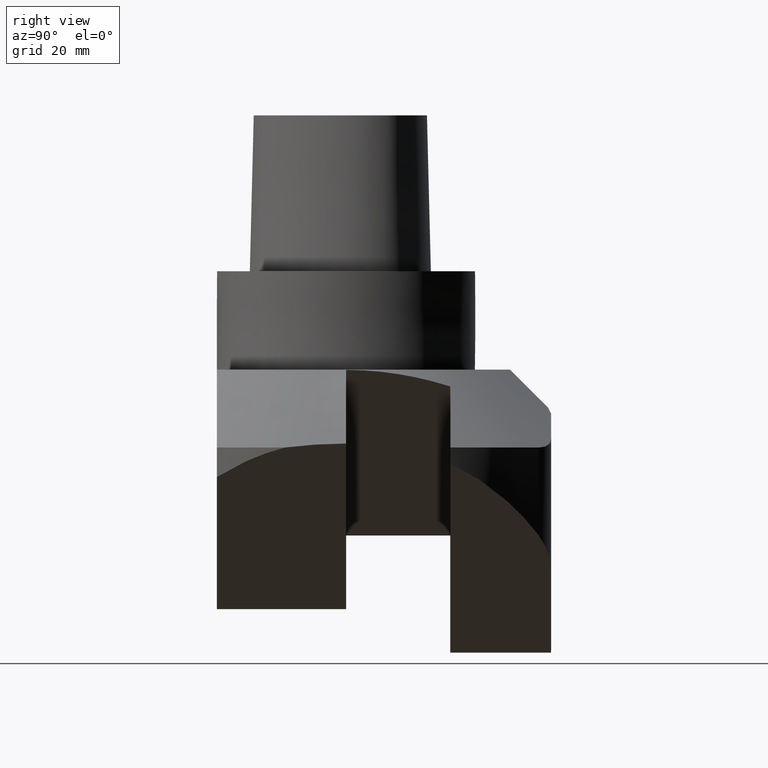
[diagram: clean part render]
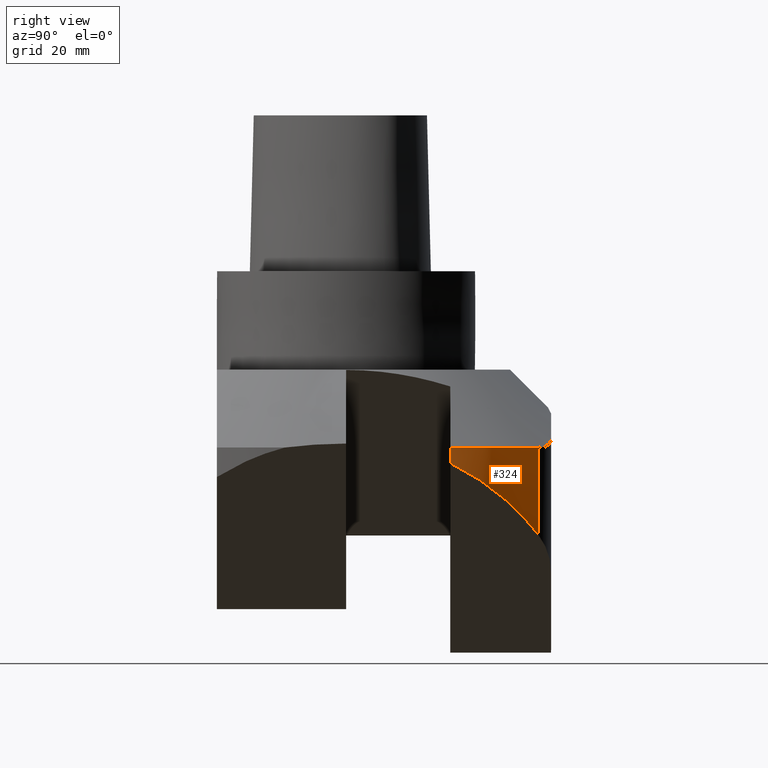
[diagram: same view with one face highlighted and labeled with its STEP entity id]
A machine part, right view. The second image highlights one B-rep face of the part: STEP entity #324.
In plain terms, the highlighted cylindrical surface (partial cylindrical patch) has radius 59 mm, axis along (-0, 0, 1).
Its self-contained STEP definition (entity closure, byte-faithful):
#144=EDGE_CURVE('Unnamed[1]',#405,#406,#407,.T.);
#177=EDGE_CURVE('Unnamed[1]',#458,#409,#459,.T.);
#242=EDGE_CURVE('Unnamed[1]',#405,#458,#548,.T.);
#324=ADVANCED_FACE('Unnamed[1]',(#652),#653,.T.);
#334=EDGE_CURVE('Unnamed[1]',#409,#406,#664,.T.);
#405=VERTEX_POINT('',#735);
#406=VERTEX_POINT('',#736);
#407=B_SPLINE_CURVE_WITH_KNOTS('',3,(#737,#738,#739,#740,#741,#742,#743,#744,#745,#746,#747,#748,#749,#750,#751,#752,#753,#754,#755,#756,#757,#758,#759,#760,#761,#762,#763,#764,#765,#766,#767,#768,#769,#770,#771,#772,#773,#774,#775,#776,#777,#778,#779,#780,#781,#782,#783,#784,#785,#786,#787,#788,#789,#790,#791,#792,#793,#794,#795,#796,#797,#798,#799,#800,#801,#802,#803,#804,#805,#806,#807,#808,#809,#810,#811,#812,#813,#814,#815,#816,#817,#818,#819,#820,#821,#822,#823,#824,#825,#826,#827,#828,#829,#830,#831,#832,#833,#834,#835,#836,#837,#838,#839,#840,#841,#842,#843,#844,#845,#846,#847,#848,#849,#850,#851,#852,#853,#854,#855,#856,#857,#858,#859,#860,#861,#862,#863,#864,#865,#866,#867,#868,#869,#870,#871,#872,#873,#874,#875,#876,#877,#878,#879,#880,#881,#882,#883,#884,#885,#886,#887,#888,#889,#890,#891,#892,#893,#894,#895,#896,#897,#898,#899,#900,#901,#902,#903,#904,#905,#906,#907,#908,#909,#910,#911,#912,#913,#914,#915,#916,#917,#918,#919,#920,#921,#922,#923,#924,#925,#926,#927,#928,#929,#930,#931,#932,#933,#934,#935,#936,#937,#938,#939,#940,#941,#942,#943,#944,#945,#946,#947,#948,#949,#950,#951,#952,#953,#954,#955,#956,#957,#958,#959,#960,#961,#962,#963,#964,#965,#966,#967,#968,#969,#970,#971,#972,#973,#974,#975,#976,#977,#978,#979,#980,#981,#982,#983,#984,#985,#986,#987,#988,#989,#990,#991,#992,#993,#994,#995,#996,#997,#998,#999,#1000,#1001,#1002,#1003,#1004,#1005,#1006,#1007,#1008,#1009,#1010,#1011,#1012,#1013,#1014,#1015,#1016,#1017,#1018,#1019,#1020,#1021,#1022,#1023,#1024,#1025,#1026,#1027,#1028,#1029,#1030,#1031,#1032,#1033,#1034,#1035,#1036,#1037,#1038,#1039,#1040,#1041,#1042,#1043,#1044,#1045,#1046,#1047,#1048,#1049,#1050,#1051,#1052,#1053,#1054,#1055,#1056,#1057,#1058,#1059,#1060,#1061,#1062,#1063,#1064,#1065,#1066,#1067,#1068,#1069,#1070,#1071,#1072,#1073,#1074,#1075,#1076,#1077,#1078,#1079,#1080,#1081,#1082,#1083,#1084,#1085,#1086,#1087,#1088,#1089,#1090,#1091,#1092,#1093,#1094,#1095,#1096,#1097,#1098,#1099,#1100,#1101,#1102,#1103,#1104,#1105,#1106,#1107,#1108,#1109,#1110,#1111,#1112,#1113,#1114,#1115,#1116,#1117,#1118,#1119,#1120,#1121,#1122,#1123,#1124,#1125,#1126,#1127,#1128,#1129,#1130,#1131,#1132,#1133,#1134,#1135,#1136,#1137,#1138,#1139,#1140,#1141,#1142,#1143,#1144,#1145,#1146,#1147,#1148,#1149,#1150,#1151,#1152,#1153,#1154,#1155,#1156,#1157,#1158,#1159,#1160,#1161,#1162,#1163,#1164,#1165,#1166,#1167,#1168,#1169,#1170,#1171,#1172,#1173,#1174,#1175,#1176,#1177,#1178,#1179,#1180,#1181,#1182,#1183,#1184,#1185,#1186,#1187,#1188,#1189,#1190,#1191,#1192,#1193,#1194,#1195,#1196,#1197,#1198,#1199,#1200,#1201,#1202,#1203,#1204,#1205,#1206,#1207,#1208,#1209,#1210,#1211,#1212,#1213,#1214,#1215,#1216,#1217,#1218,#1219,#1220,#1221,#1222,#1223,#1224,#1225,#1226,#1227,#1228,#1229,#1230,#1231,#1232,#1233,#1234,#1235,#1236,#1237,#1238,#1239,#1240,#1241,#1242,#1243,#1244,#1245,#1246,#1247,#1248,#1249,#1250,#1251,#1252,#1253,#1254,#1255,#1256,#1257,#1258,#1259,#1260,#1261,#1262,#1263,#1264,#1265,#1266,#1267,#1268,#1269,#1270,#1271,#1272,#1273,#1274,#1275,#1276,#1277,#1278,#1279,#1280,#1281,#1282,#1283,#1284,#1285,#1286,#1287,#1288,#1289,#1290,#1291,#1292,#1293,#1294,#1295,#1296,#1297,#1298,#1299,#1300,#1301,#1302,#1303,#1304,#1305,#1306,#1307,#1308,#1309,#1310,#1311,#1312,#1313,#1314,#1315,#1316,#1317,#1318,#1319,#1320,#1321,#1322,#1323,#1324,#1325,#1326,#1327,#1328,#1329,#1330,#1331,#1332,#1333,#1334,#1335,#1336,#1337,#1338,#1339,#1340,#1341,#1342,#1343,#1344,#1345,#1346,#1347,#1348,#1349,#1350,#1351,#1352,#1353,#1354,#1355,#1356,#1357,#1358,#1359,#1360,#1361,#1362,#1363,#1364,#1365,#1366,#1367,#1368,#1369,#1370,#1371,#1372,#1373,#1374,#1375,#1376,#1377,#1378,#1379,#1380,#1381,#1382,#1383,#1384,#1385,#1386,#1387,#1388,#1389,#1390,#1391,#1392,#1393,#1394,#1395,#1396,#1397,#1398,#1399,#1400,#1401,#1402,#1403,#1404,#1405,#1406,#1407,#1408,#1409,#1410,#1411,#1412,#1413,#1414,#1415,#1416,#1417,#1418,#1419,#1420,#1421,#1422,#1423,#1424,#1425,#1426,#1427,#1428,#1429,#1430,#1431,#1432,#1433,#1434,#1435,#1436,#1437,#1438,#1439,#1440,#1441,#1442,#1443,#1444,#1445,#1446,#1447,#1448,#1449,#1450,#1451,#1452,#1453,#1454,#1455,#1456,#1457,#1458,#1459,#1460,#1461,#1462,#1463,#1464,#1465,#1466,#1467,#1468,#1469,#1470,#1471,#1472,#1473,#1474,#1475,#1476,#1477,#1478,#1479,#1480,#1481,#1482,#1483,#1484,#1485,#1486,#1487,#1488,#1489,#1490,#1491,#1492,#1493,#1494,#1495,#1496,#1497,#1498,#1499,#1500,#1501,#1502,#1503,#1504,#1505,#1506,#1507,#1508,#1509,#1510,#1511,#1512,#1513,#1514,#1515,#1516,#1517,#1518,#1519,#1520,#1521,#1522,#1523,#1524,#1525,#1526,#1527,#1528,#1529,#1530,#1531,#1532,#1533,#1534,#1535,#1536,#1537,#1538,#1539,#1540,#1541,#1542,#1543,#1544,#1545,#1546,#1547,#1548,#1549,#1550,#1551,#1552,#1553,#1554,#1555,#1556,#1557,#1558,#1559,#1560,#1561,#1562,#1563,#1564,#1565,#1566,#1567,#1568,#1569,#1570,#1571,#1572,#1573,#1574,#1575,#1576,#1577,#1578,#1579,#1580,#1581,#1582,#1583,#1584,#1585,#1586,#1587,#1588,#1589,#1590,#1591,#1592,#1593,#1594,#1595,#1596,#1597,#1598,#1599,#1600,#1601,#1602,#1603,#1604,#1605,#1606,#1607,#1608,#1609,#1610,#1611,#1612,#1613,#1614,#1615,#1616,#1617,#1618,#1619,#1620,#1621,#1622,#1623,#1624,#1625,#1626,#1627,#1628,#1629,#1630,#1631,#1632,#1633,#1634,#1635,#1636,#1637,#1638,#1639,#1640,#1641,#1642,#1643,#1644,#1645,#1646,#1647,#1648,#1649,#1650,#1651,#1652,#1653,#1654,#1655,#1656,#1657,#1658,#1659,#1660,#1661,#1662,#1663,#1664,#1665,#1666,#1667,#1668),.UNSPECIFIED.,.F.,.F.,(4,2,2,2,2,2,2,2,2,2,2,2,2,2,2,2,2,2,2,2,2,2,2,2,2,2,2,2,2,2,2,2,2,2,2,2,2,2,2,2,2,2,2,2,2,2,2,2,2,2,2,2,2,2,2,2,2,2,2,2,2,2,2,2,2,2,2,2,2,2,2,2,2,2,2,2,2,2,2,2,2,2,2,2,2,2,2,2,2,2,2,2,2,2,2,2,2,2,2,2,2,2,2,2,2,2,2,2,2,2,2,2,2,2,2,2,2,2,2,2,2,2,2,2,2,2,2,2,2,2,2,2,2,2,2,2,2,2,2,2,2,2,2,2,2,2,2,2,2,2,2,2,2,2,2,2,2,2,2,2,2,2,2,2,2,2,2,2,2,2,2,2,2,2,2,2,2,2,2,2,2,2,2,2,2,2,2,2,2,2,2,2,2,2,2,2,2,2,2,2,2,2,2,2,2,2,2,2,2,2,2,2,2,2,2,2,2,2,2,2,2,2,2,2,2,2,2,2,2,2,2,2,2,2,2,2,2,2,2,2,2,2,2,2,2,2,2,2,2,2,2,2,2,2,2,2,2,2,2,2,2,2,2,2,2,2,2,2,2,2,2,2,2,2,2,2,2,2,2,2,2,2,2,2,2,2,2,2,2,2,2,2,2,2,2,2,2,2,2,2,2,2,2,2,2,2,2,2,2,2,2,2,2,2,2,2,2,2,2,2,2,2,2,2,2,2,2,2,2,2,2,2,2,2,2,2,2,2,2,2,2,2,2,2,2,2,2,2,2,2,2,2,2,2,2,2,2,2,2,2,2,2,2,2,2,2,2,2,2,2,2,2,2,2,2,2,2,2,2,2,2,2,2,2,2,2,2,2,2,2,2,2,2,2,2,2,2,2,2,2,2,2,2,2,2,2,2,2,2,2,2,2,2,2,2,2,2,2,2,2,2,2,2,2,2,2,2,2,2,2,2,2,2,2,2,2,2,2,2,2,2,2,2,2,2,2,2,2,2,2,2,2,2,2,2,2,2,2,2,2,2,2,2,2,2,4),(183.781404986134,183.866252711554,183.908676571596,183.951100431681,184.035948157437,184.120795883365,184.205643609465,184.29049133574,184.375339062189,184.460186788815,184.545034515619,184.629882242603,184.799577740788,184.884425468318,184.969273196033,185.054120923933,185.096544785225,185.138968646564,185.18139250795,185.223816369382,185.308664097852,185.393511826513,185.478359555368,185.648055057335,185.817750560092,185.902598289935,185.987446019977,186.157141524349,186.326837029542,186.496532535571,186.581380267066,186.666227998772,186.835923506503,187.005619015101,187.090466747892,187.175314480904,187.260162214138,187.345009947597,187.42985768128,187.51470541519,187.599553149328,187.684400883695,187.769248618294,187.854096353123,187.896520217896,187.938944082727,188.023791818026,188.108639553562,188.193487289334,188.23591115458,188.278335019886,188.363182756136,188.44803049263,188.532878229365,188.617725966345,188.702573703572,188.787421441046,188.872269178768,188.957116916739,189.041964654964,189.211660175844,189.29650791483,189.381355654071,189.551051177004,189.593475044252,189.635898911566,189.678322778945,189.720746646389,189.805594386936,189.890442127748,190.060137653844,190.144985395458,190.229833137342,190.399528665603,190.484376408306,190.569224151286,190.654071894544,190.738919638079,190.908615169665,191.078310702381,191.248006236238,191.417701771248,191.587397307421,191.757092844767,191.926788383298,192.011636131173,192.096483879349,192.181331627827,192.266179376607,192.351027125691,192.372239061304,192.393450996936,192.414662932587,192.435874868257,192.478298740337,192.520722612494,192.563146484728,192.60557035704,192.775265901654,192.944961447517,193.114656994639,193.15708086797,193.199504741379,193.284352493898,193.369200246738,193.454047999897,193.538895753381,193.623743507188,193.708591261321,193.751015135781,193.793439010323,193.963134563903,194.132830118806,194.217677874922,194.30252563137,194.387373388156,194.472221145279,194.55706890274,194.641916660542,194.726764418686,194.811612177172,194.896459936003,194.981307695178,195.151003258246,195.320698822711,195.405546583633,195.49039434491,195.575242106541,195.61766598476,195.660089863068,195.744937625412,195.829785388115,195.999480958275,196.084328722062,196.126752601362,196.169176480752,196.254024245268,196.338872010149,196.508567584691,196.55099146491,196.593415345222,196.678263111582,196.847958689096,197.017654268113,197.060078149455,197.102502030892,197.18734979951,197.27219756851,197.293409509113,197.31462144974,197.357045331748,197.441893101512,197.52674087166,197.611588642195,197.696436413116,197.781284184426,197.866131956126,197.950979728217,198.035827500701,198.205523090524,198.290370864192,198.375218638258,198.417642522711,198.460066407263,198.544914182128,198.629761957394,198.714609733063,198.799457509135,198.841881394594,198.884305280154,198.969153057039,199.054000834331,199.223696433818,199.30854421234,199.393391991276,199.563087594066,199.732783198523,199.817630979542,199.902478760982,199.94490264913,199.987326537384,200.072174319669,200.114598208241,200.157022096919,200.241869880053,200.284293769051,200.326717658156,200.411565442145,200.496413226563,200.581261011412,200.750956626081,200.83580441223,200.920652198814,201.005499985836,201.047923876781,201.090347767835,201.175195555734,201.217619447118,201.260043338614,201.344891127394,201.387315019221,201.429738911159,201.514586700827,201.599434490942,201.769130116186,201.853977907644,201.938825699554,202.023673491915,202.108521284729,202.278216915395,202.363064709576,202.405488604109,202.447912498756,202.532760293854,202.617608089412,202.702455885432,202.744879780886,202.787303676455,202.95699931449,203.04184711237,203.126694910717,203.296390552494,203.381238352252,203.466086152483,203.635781798043,203.656993746706,203.6782056954,203.699417644123,203.720629592876,203.763053491154,203.805477389551,203.890325192165,203.975172995258,204.017596894255,204.060020793373,204.14486859743,204.18729249691,204.229716396512,204.272140296235,204.314564196079,204.356988096045,204.399411996133,204.484259802131,204.653955459272,204.823651118376,204.866075019811,204.908498921371,204.99334673032,205.035770632251,205.078194534306,205.120618436485,205.163042338789,205.247890149228,205.290314051907,205.332737954709,205.502433621766,205.58728143421,205.67212924716,205.756977060615,205.841824874576,205.926672689045,206.011520504022,206.181216179183,206.223640084645,206.266063990235,206.350911807262,206.435759624803,206.520607442859,206.541819395747,206.563031348668,206.584243301622,206.605455254607,206.6903030737,206.775150893312,206.859998713445,206.944846534099,207.029694355277,207.199390042881,207.284237865634,207.369085688916,207.538781380741,207.708477074692,207.878172770778,208.047868469007,208.217564169389,208.387259871934,208.55695557665,208.726651283547,208.811499115979,208.89634694896,208.981194782491,209.023618696733,209.066042611113,209.108466525631,209.150890440287,209.193314355082,209.235738270015,209.320586105756,209.405433942052,209.57512965999,209.744825380165,209.829673219257,209.872097136283,209.914521053451,210.084216778122,210.253912505057,210.423608234263,210.59330396575,210.762999699527,210.805423619681,210.84784753998,210.932695386469,211.017543233535,211.102391081178,211.1872389294,211.272086778204,211.441782521228,211.611478266586,211.781174014288,211.95086976434,212.035717618414,212.12056547308,212.290261227864,212.375109084309,212.45995694135,212.544804798988,212.629652657224,212.714500516059,212.756924442971,212.799348370033,212.96904413438,213.13873990114,213.308435670321,213.393283533986,213.435707463315,213.478131392798,213.562979257681,213.647827123173,213.81752289967,213.902370767002,213.987218634949,214.072066503512,214.156914372691,214.32661015658,214.411458027616,214.496305899275,214.538729832608,214.581153766097,214.666001639,214.835697430358,215.005393224222,215.090241100258,215.175088976925,215.344784775826,215.429632654389,215.472056591178,215.49326855929,215.514480527443,215.684176331416,215.769024212519,215.81144815058,215.853872088802,215.896296027183,215.938719965724,216.023567848744,216.193263660385,216.278111545333,216.362959430924,216.447807317161,216.532655204043,216.702351023425,216.787198912253,216.872046801731,216.956894691861,216.99931863444,217.041742577182,217.211438404381,217.381134234201,217.423558178418,217.465982122799,217.550830017515,217.720525852601,217.805373749297,217.847797695164,217.890221641197,217.97506953922,218.059917437907,218.144765337259,218.229613237277,218.399309082991,218.484156985014,218.526580933547,218.569004882249,218.653852785614,218.73870068965,218.82354859436,218.908396499744,218.993244405803,219.078092312539,219.162940219952,219.247788128042,219.417483989934,219.502331900065,219.544755852656,219.587179805417,219.62960375835,219.672027711454,219.756875623632,219.841723536496,219.926571450045,220.011419364282,220.096267279206,220.265963154793,220.435659033143,220.520506951519,220.605354870588,220.690202790351,220.732626747764,220.775050705352,220.859898626507,220.944746548359,221.029594470908,221.072018429716,221.114442388698,221.284138280971,221.368986206322,221.411410166532,221.453834126917,221.623530024811,221.665953986077,221.70837794752,221.793225876393,221.962921779939,222.132617686322,222.217465618741,222.302313551872,222.472009463948,222.641705378883,222.726553315588,222.81140125301,222.981097173682,223.150793097235,223.235641038258,223.27806500631,223.320488974542,223.362912942956,223.40533691155,223.490184854742,223.575032798659,223.659880743304,223.681092727873,223.702304712487,223.744728682534,223.787152652763,223.829576623173,223.914424570001,223.999272517558,224.084120465846,224.168968414866,224.211392386921,224.253816359159,224.338664309643,224.50836025649,224.59320820918,224.635632183072,224.678056157148),.UNSPECIFIED.);
#409=VERTEX_POINT('',#1671);
#458=VERTEX_POINT('',#1839);
#459=ELLIPSE('',#1840,83.4382576943726,59.0);
#548=LINE('',#2059,#2060);
#652=FACE_OUTER_BOUND('',#4852,.T.);
#653=CYLINDRICAL_SURFACE('',#4853,59.0);
#664=LINE('',#4871,#4872);
#735=CARTESIAN_POINT('',(53.2523186252243,25.399720838795,-43.0002669313243));
#736=CARTESIAN_POINT('',(35.7541693520039,46.9319649429309,-43.0003915260265));
#737=CARTESIAN_POINT('',(58.0356762520358,10.6212767914775,-43.0002328716183));
#738=CARTESIAN_POINT('',(58.0305847764606,10.6490973042873,-43.0002329078719));
#739=CARTESIAN_POINT('',(58.0244494020701,10.6824772237373,-43.0002329515586));
#740=CARTESIAN_POINT('',(58.0167481841293,10.7241962277283,-43.0002330063948));
#741=CARTESIAN_POINT('',(58.0136612977388,10.7408826460545,-43.0002330283749));
#742=CARTESIAN_POINT('',(58.0085058222698,10.7686913682373,-43.0002330650843));
#743=CARTESIAN_POINT('',(58.0054061385525,10.7853754140766,-43.0002330871555));
#744=CARTESIAN_POINT('',(57.9976409339718,10.8270825556749,-43.0002331424473));
#745=CARTESIAN_POINT('',(57.9914031809976,10.8604434952358,-43.000233186863));
#746=CARTESIAN_POINT('',(57.9809642835237,10.9160370711017,-43.0002332611927));
#747=CARTESIAN_POINT('',(57.9746753632135,10.9493884029575,-43.0002333059728));
#748=CARTESIAN_POINT('',(57.9641511991527,11.0049659005786,-43.0002333809097));
#749=CARTESIAN_POINT('',(57.9578111263045,11.0383075462515,-43.0002334260539));
#750=CARTESIAN_POINT('',(57.9472017204203,11.0938688348511,-43.0002335015978));
#751=CARTESIAN_POINT('',(57.940810509952,11.127200715887,-43.0002335471062));
#752=CARTESIAN_POINT('',(57.9301158872082,11.1827456647268,-43.0002336232568));
#753=CARTESIAN_POINT('',(57.9236735541586,11.2160677026935,-43.0002336691292));
#754=CARTESIAN_POINT('',(57.9128937397198,11.2715961810731,-43.0002337458865));
#755=CARTESIAN_POINT('',(57.9064002992475,11.3049082975625,-43.0002337921227));
#756=CARTESIAN_POINT('',(57.8955353184785,11.3604201748209,-43.0002338694864));
#757=CARTESIAN_POINT('',(57.8889907858627,11.3937222914479,-43.0002339160865));
#758=CARTESIAN_POINT('',(57.8780406643286,11.4492174369631,-43.0002339940565));
#759=CARTESIAN_POINT('',(57.8714450549684,11.4825094753667,-43.0002340410202));
#760=CARTESIAN_POINT('',(57.8548921973105,11.5657269145176,-43.0002341588842));
#761=CARTESIAN_POINT('',(57.8415478031958,11.6322804800299,-43.0002342539025));
#762=CARTESIAN_POINT('',(57.8247397176789,11.7154467446304,-43.0002343735838));
#763=CARTESIAN_POINT('',(57.8179909716831,11.7487080784309,-43.0002344216379));
#764=CARTESIAN_POINT('',(57.8067005467479,11.8041349915425,-43.0002345020309));
#765=CARTESIAN_POINT('',(57.7999007868064,11.8373859339123,-43.0002345504485));
#766=CARTESIAN_POINT('',(57.7885253519365,11.8927954627662,-43.0002346314468));
#767=CARTESIAN_POINT('',(57.7816745940491,11.9260359354637,-43.0002346802273));
#768=CARTESIAN_POINT('',(57.7730792807096,11.9675799452109,-43.0002347414299));
#769=CARTESIAN_POINT('',(57.7696347830438,11.9841962286982,-43.0002347659564));
#770=CARTESIAN_POINT('',(57.7638833336525,12.0118878309242,-43.0002348069094));
#771=CARTESIAN_POINT('',(57.7604260925564,12.0285014676646,-43.0002348315265));
#772=CARTESIAN_POINT('',(57.7546534058076,12.0561886505012,-43.0002348726307));
#773=CARTESIAN_POINT('',(57.7511834233147,12.0727996307216,-43.0002348973386));
#774=CARTESIAN_POINT('',(57.7453895026043,12.1004823778812,-43.000234938594));
#775=CARTESIAN_POINT('',(57.741906780756,12.1170906918096,-43.0002349633926));
#776=CARTESIAN_POINT('',(57.7331840534811,12.1586081364112,-43.0002350255024));
#777=CARTESIAN_POINT('',(57.7261803989546,12.1918167308937,-43.0002350753716));
#778=CARTESIAN_POINT('',(57.7144651940087,12.2471554193178,-43.0002351587893));
#779=CARTESIAN_POINT('',(57.7074106067352,12.2803532314118,-43.0002352090212));
#780=CARTESIAN_POINT('',(57.6956105276855,12.3356738840866,-43.0002352930432));
#781=CARTESIAN_POINT('',(57.6885050242644,12.3688608356763,-43.0002353436377));
#782=CARTESIAN_POINT('',(57.6706776331033,12.4518145801343,-43.0002354705769));
#783=CARTESIAN_POINT('',(57.6563139368934,12.5181556260504,-43.0002355728531));
#784=CARTESIAN_POINT('',(57.6322048627501,12.6286871836272,-43.0002357445208));
#785=CARTESIAN_POINT('',(57.6176377040252,12.6949838507503,-43.0002358482458));
#786=CARTESIAN_POINT('',(57.5993016572607,12.7778266481732,-43.0002359788069));
#787=CARTESIAN_POINT('',(57.5919418262847,12.8109581264003,-43.0002360312123));
#788=CARTESIAN_POINT('',(57.5796330926743,12.8661678324689,-43.0002361188561));
#789=CARTESIAN_POINT('',(57.572222447662,12.8992879820374,-43.0002361716233));
#790=CARTESIAN_POINT('',(57.5536323307024,12.982074136374,-43.0002363039935));
#791=CARTESIAN_POINT('',(57.5386586601788,13.0482801743438,-43.0002364106129));
#792=CARTESIAN_POINT('',(57.5135333085316,13.158585159481,-43.000236589517));
#793=CARTESIAN_POINT('',(57.4983565925507,13.2247449479427,-43.0002366975823));
#794=CARTESIAN_POINT('',(57.4728929504457,13.3349723315513,-43.0002368788952));
#795=CARTESIAN_POINT('',(57.4575133318503,13.4010852477963,-43.0002369884051));
#796=CARTESIAN_POINT('',(57.43816206386,13.4836967990555,-43.0002371261951));
#797=CARTESIAN_POINT('',(57.4303962155253,13.5167354674006,-43.0002371814915));
#798=CARTESIAN_POINT('',(57.4174109051531,13.5717899713659,-43.0002372739529));
#799=CARTESIAN_POINT('',(57.4095943856244,13.6048166883472,-43.0002373296102));
#800=CARTESIAN_POINT('',(57.3899897616452,13.6873684830048,-43.0002374692041));
#801=CARTESIAN_POINT('',(57.3742047739877,13.753385788461,-43.0002375816005));
#802=CARTESIAN_POINT('',(57.3477277112147,13.8633741455655,-43.0002377701294));
#803=CARTESIAN_POINT('',(57.331740260925,13.9293427133486,-43.0002378839674));
#804=CARTESIAN_POINT('',(57.3116294810548,14.011772663767,-43.0002380271654));
#805=CARTESIAN_POINT('',(57.3035598838218,14.0447384587986,-43.0002380846248));
#806=CARTESIAN_POINT('',(57.2900684185872,14.0996711189951,-43.0002381806902));
#807=CARTESIAN_POINT('',(57.2819482623006,14.1326244968103,-43.0002382385095));
#808=CARTESIAN_POINT('',(57.268372547874,14.1875363970228,-43.0002383351748));
#809=CARTESIAN_POINT('',(57.2602018516403,14.2204772800809,-43.0002383933539));
#810=CARTESIAN_POINT('',(57.2465419199652,14.2753682910994,-43.0002384906189));
#811=CARTESIAN_POINT('',(57.23832070301,14.3082966018893,-43.0002385491578));
#812=CARTESIAN_POINT('',(57.2245765862281,14.3631665945524,-43.0002386470222));
#813=CARTESIAN_POINT('',(57.2163048678962,14.3960822555913,-43.0002387059207));
#814=CARTESIAN_POINT('',(57.2024765983477,14.4509311007866,-43.0002388043843));
#815=CARTESIAN_POINT('',(57.1941543981022,14.4838340346225,-43.0002388636423));
#816=CARTESIAN_POINT('',(57.1802420083249,14.538661603288,-43.0002389627049));
#817=CARTESIAN_POINT('',(57.171869345748,14.5715517324988,-43.0002390223221));
#818=CARTESIAN_POINT('',(57.1578728684777,14.6263578956227,-43.0002391219835));
#819=CARTESIAN_POINT('',(57.1494497632702,14.6592351428164,-43.0002391819599));
#820=CARTESIAN_POINT('',(57.1353692314405,14.7140197714371,-43.0002392822198));
#821=CARTESIAN_POINT('',(57.1268957034221,14.7468840592515,-43.0002393425552));
#822=CARTESIAN_POINT('',(57.1127311501646,14.8016470244575,-43.0002394434133));
#823=CARTESIAN_POINT('',(57.1042072192735,14.8344982755612,-43.0002395041077));
#824=CARTESIAN_POINT('',(57.093520813493,14.875554154351,-43.0002395801998));
#825=CARTESIAN_POINT('',(57.0892399538235,14.8919748647147,-43.0002396106815));
#826=CARTESIAN_POINT('',(57.0820946928607,14.9193399771977,-43.0002396615591));
#827=CARTESIAN_POINT('',(57.0778012400054,14.9357573993987,-43.0002396921304));
#828=CARTESIAN_POINT('',(57.0670518682825,14.9767968374333,-43.0002397686709));
#829=CARTESIAN_POINT('',(57.0584271919347,15.0096217832452,-43.0002398300825));
#830=CARTESIAN_POINT('',(57.0440107751591,15.0643189852537,-43.0002399327341));
#831=CARTESIAN_POINT('',(57.0353357564645,15.0971306625458,-43.0002399945042));
#832=CARTESIAN_POINT('',(57.0208354527634,15.151805686008,-43.0002400977531));
#833=CARTESIAN_POINT('',(57.0121101121346,15.1846040175723,-43.0002401598815));
#834=CARTESIAN_POINT('',(57.0011719949962,15.2255935538615,-43.000240237766));
#835=CARTESIAN_POINT('',(56.9967904609717,15.241987688617,-43.0002402689645));
#836=CARTESIAN_POINT('',(56.989477426415,15.2693084440766,-43.0002403210367));
#837=CARTESIAN_POINT('',(56.9850833196169,15.2856992134619,-43.0002403523248));
#838=CARTESIAN_POINT('',(56.974082338597,15.3266719229595,-43.0002404306568));
#839=CARTESIAN_POINT('',(56.9652564158099,15.359443331572,-43.0002404935015));
#840=CARTESIAN_POINT('',(56.9505046568363,15.4140510476878,-43.0002405985408));
#841=CARTESIAN_POINT('',(56.9416284740617,15.4468088791399,-43.0002406617433));
#842=CARTESIAN_POINT('',(56.9267929658228,15.5013939024134,-43.000240767379));
#843=CARTESIAN_POINT('',(56.9178665439468,15.5341380796233,-43.0002408309392));
#844=CARTESIAN_POINT('',(56.9029473213506,15.5887002816127,-43.0002409371709));
#845=CARTESIAN_POINT('',(56.8939706813769,15.621430727532,-43.0002410010887));
#846=CARTESIAN_POINT('',(56.8789677795282,15.6759699798506,-43.0002411079163));
#847=CARTESIAN_POINT('',(56.8699409425786,15.7086866174635,-43.0002411721915));
#848=CARTESIAN_POINT('',(56.8548543967792,15.7632027917773,-43.0002412796147));
#849=CARTESIAN_POINT('',(56.8457773840942,15.795905544099,-43.0002413442472));
#850=CARTESIAN_POINT('',(56.8306072298428,15.8503985121282,-43.0002414522657));
#851=CARTESIAN_POINT('',(56.8214800627805,15.8830873022076,-43.0002415172554));
#852=CARTESIAN_POINT('',(56.8062263357726,15.9375569357273,-43.0002416258689));
#853=CARTESIAN_POINT('',(56.7970490358092,15.970231686646,-43.0002416912155));
#854=CARTESIAN_POINT('',(56.7817117719366,16.0246778574871,-43.0002418004239));
#855=CARTESIAN_POINT('',(56.7724843606661,16.0573384923604,-43.0002418661273));
#856=CARTESIAN_POINT('',(56.7493532096897,16.1389723765603,-43.0002420308318));
#857=CARTESIAN_POINT('',(56.7307481299337,16.2042510267943,-43.0002421633086));
#858=CARTESIAN_POINT('',(56.7073666402333,16.2858135621736,-43.0002423297956));
#859=CARTESIAN_POINT('',(56.6979890257861,16.3184313879293,-43.0002423965684));
#860=CARTESIAN_POINT('',(56.6823179773053,16.3727824274635,-43.0002425081535));
#861=CARTESIAN_POINT('',(56.6728903391067,16.4053858299651,-43.0002425752827));
#862=CARTESIAN_POINT('',(56.6492587306082,16.4868762493312,-43.0002427435506));
#863=CARTESIAN_POINT('',(56.6302534613253,16.5520395136758,-43.0002428788769));
#864=CARTESIAN_POINT('',(56.6103522069699,16.6198874616236,-43.000243020583));
#865=CARTESIAN_POINT('',(56.6055696628879,16.6361691321175,-43.0002430546369));
#866=CARTESIAN_POINT('',(56.5975883501651,16.6633021908492,-43.0002431114675));
#867=CARTESIAN_POINT('',(56.5927933196841,16.679580188439,-43.0002431456104));
#868=CARTESIAN_POINT('',(56.5847911986454,16.706707117684,-43.0002432025892));
#869=CARTESIAN_POINT('',(56.579983684586,16.7229814327943,-43.0002432368208));
#870=CARTESIAN_POINT('',(56.5719607599386,16.7501022165948,-43.0002432939478));
#871=CARTESIAN_POINT('',(56.5671407651289,16.766372839652,-43.0002433282684));
#872=CARTESIAN_POINT('',(56.5550751792969,16.807044775031,-43.0002434141809));
#873=CARTESIAN_POINT('',(56.545397757441,16.8395749111874,-43.0002434830886));
#874=CARTESIAN_POINT('',(56.5292271421848,16.8937794181888,-43.0002435982308));
#875=CARTESIAN_POINT('',(56.5194998314405,16.926294671302,-43.0002436674937));
#876=CARTESIAN_POINT('',(56.4951192106873,17.0075641426189,-43.000243841095));
#877=CARTESIAN_POINT('',(56.4755150033927,17.0725497295492,-43.000243980686));
#878=CARTESIAN_POINT('',(56.4508851677756,17.1537440204773,-43.0002441560618));
#879=CARTESIAN_POINT('',(56.4410083281656,17.1862141655408,-43.0002442263894));
#880=CARTESIAN_POINT('',(56.4245054267691,17.2403184325003,-43.0002443438977));
#881=CARTESIAN_POINT('',(56.414578790528,17.2727733886916,-43.0002444145799));
#882=CARTESIAN_POINT('',(56.3896999717067,17.3538917355285,-43.0002445917286));
#883=CARTESIAN_POINT('',(56.3696973918461,17.4187558116319,-43.0002447341561));
#884=CARTESIAN_POINT('',(56.3445698241393,17.4997974503554,-43.0002449130759));
#885=CARTESIAN_POINT('',(56.3344939386174,17.5322063818658,-43.0002449848209));
#886=CARTESIAN_POINT('',(56.31765937238,17.5862083718268,-43.0002451046908));
#887=CARTESIAN_POINT('',(56.3075337843587,17.618601809209,-43.0002451767896));
#888=CARTESIAN_POINT('',(56.2906164004528,17.6725779120957,-43.0002452972492));
#889=CARTESIAN_POINT('',(56.2804411337579,17.704955779126,-43.0002453697018));
#890=CARTESIAN_POINT('',(56.2634409719904,17.7589058679288,-43.0002454907508));
#891=CARTESIAN_POINT('',(56.2532160505644,17.7912680884196,-43.0002455635569));
#892=CARTESIAN_POINT('',(56.2275916966837,17.8721540240893,-43.0002457460141));
#893=CARTESIAN_POINT('',(56.2069929746315,17.9368312565612,-43.0002458926865));
#894=CARTESIAN_POINT('',(56.1724964566214,18.04457385452,-43.0002461383176));
#895=CARTESIAN_POINT('',(56.1516994057636,18.1091875874831,-43.0002462864021));
#896=CARTESIAN_POINT('',(56.1168725024737,18.2168238460036,-43.0002465343857));
#897=CARTESIAN_POINT('',(56.0958773185522,18.2813734712997,-43.0002466838811));
#898=CARTESIAN_POINT('',(56.0607203577732,18.388902377287,-43.0002469342148));
#899=CARTESIAN_POINT('',(56.0395272383946,18.4533872873618,-43.0002470851196));
#900=CARTESIAN_POINT('',(56.0040405510238,18.5608078287313,-43.0002473378011));
#901=CARTESIAN_POINT('',(55.9826496956577,18.6252274166389,-43.0002474901139));
#902=CARTESIAN_POINT('',(55.9468336156958,18.7325385823254,-43.0002477451409));
#903=CARTESIAN_POINT('',(55.9252452256729,18.7968922417351,-43.0002478988601));
#904=CARTESIAN_POINT('',(55.8891000902209,18.9040930217035,-43.0002481562301));
#905=CARTESIAN_POINT('',(55.8673143687312,18.9683801469052,-43.0002483113544));
#906=CARTESIAN_POINT('',(55.8399589830681,19.0486971788134,-43.0002485061374));
#907=CARTESIAN_POINT('',(55.8289921930762,19.0808155842592,-43.000248584226));
#908=CARTESIAN_POINT('',(55.8106731578666,19.1343322254103,-43.0002487146659));
#909=CARTESIAN_POINT('',(55.7996571120727,19.1664337704566,-43.0002487931052));
#910=CARTESIAN_POINT('',(55.7812560054364,19.2199222479857,-43.0002489241296));
#911=CARTESIAN_POINT('',(55.7701907297614,19.2520068570952,-43.0002490029195));
#912=CARTESIAN_POINT('',(55.7517075949964,19.3054670451406,-43.0002491345279));
#913=CARTESIAN_POINT('',(55.740593115477,19.3375346428164,-43.0002492136681));
#914=CARTESIAN_POINT('',(55.7220279960741,19.3909664155836,-43.0002493458603));
#915=CARTESIAN_POINT('',(55.7108643388626,19.4230169263691,-43.0002494253506));
#916=CARTESIAN_POINT('',(55.6992099263427,19.4563939456377,-43.0002495083354));
#917=CARTESIAN_POINT('',(55.6964113315835,19.4644038932881,-43.0002495282627));
#918=CARTESIAN_POINT('',(55.6917444472721,19.4777529114325,-43.0002495614931));
#919=CARTESIAN_POINT('',(55.6889427809605,19.4857617852608,-43.0002495814422));
#920=CARTESIAN_POINT('',(55.6842707777381,19.4991090127199,-43.0002496147091));
#921=CARTESIAN_POINT('',(55.6814660402861,19.5071168115482,-43.0002496346801));
#922=CARTESIAN_POINT('',(55.67678891884,19.5204622463592,-43.0002496679833));
#923=CARTESIAN_POINT('',(55.6739811106599,19.5284689690098,-43.0002496879762));
#924=CARTESIAN_POINT('',(55.6669577521083,19.548484429534,-43.0002497379857));
#925=CARTESIAN_POINT('',(55.6613329250225,19.5644946421441,-43.0002497780371));
#926=CARTESIAN_POINT('',(55.6519479808966,19.5911747327569,-43.0002498448622));
#927=CARTESIAN_POINT('',(55.6463108758595,19.6071806265278,-43.000249885001));
#928=CARTESIAN_POINT('',(55.6369054712432,19.6338535112284,-43.0002499519718));
#929=CARTESIAN_POINT('',(55.6312560915707,19.6498550767446,-43.000249992198));
#930=CARTESIAN_POINT('',(55.6218302319968,19.6765207398425,-43.0002500593144));
#931=CARTESIAN_POINT('',(55.6161685810123,19.6925179676907,-43.000250099628));
#932=CARTESIAN_POINT('',(55.5925528024024,19.759164049548,-43.0002502677832));
#933=CARTESIAN_POINT('',(55.5697835363643,19.8231094401713,-43.0002504299108));
#934=CARTESIAN_POINT('',(55.5316713203017,19.9296267539312,-43.0002507012874));
#935=CARTESIAN_POINT('',(55.5087059808713,19.993501989434,-43.0002508648111));
#936=CARTESIAN_POINT('',(55.470267155562,20.0999018768485,-43.0002511385132));
#937=CARTESIAN_POINT('',(55.4471059588892,20.1637063560232,-43.0002513034316));
#938=CARTESIAN_POINT('',(55.422877790035,20.2301322638194,-43.0002514759473));
#939=CARTESIAN_POINT('',(55.417056917691,20.2460722465576,-43.0002515173946));
#940=CARTESIAN_POINT('',(55.407345276379,20.2726351620898,-43.0002515865459));
#941=CARTESIAN_POINT('',(55.4015121800056,20.2885706756462,-43.0002516280803));
#942=CARTESIAN_POINT('',(55.3869141616108,20.3284038660182,-43.0002517320249));
#943=CARTESIAN_POINT('',(55.3752113088942,20.3602614524851,-43.0002518153545));
#944=CARTESIAN_POINT('',(55.3556658362381,20.4133424545549,-43.0002519545273));
#945=CARTESIAN_POINT('',(55.343914128666,20.4451820518363,-43.0002520382048));
#946=CARTESIAN_POINT('',(55.3242872542701,20.4982330094872,-43.0002521779572));
#947=CARTESIAN_POINT('',(55.3124867194946,20.5300545426621,-43.0002522619825));
#948=CARTESIAN_POINT('',(55.292778489541,20.5830753310627,-43.0002524023141));
#949=CARTESIAN_POINT('',(55.2809291553283,20.6148787252542,-43.0002524866868));
#950=CARTESIAN_POINT('',(55.2611396161904,20.6678692196438,-43.0002526275974));
#951=CARTESIAN_POINT('',(55.2492415104222,20.6996544000163,-43.0002527123174));
#952=CARTESIAN_POINT('',(55.2293707086649,20.752614475705,-43.0002528538067));
#953=CARTESIAN_POINT('',(55.2174238593376,20.7843813674662,-43.0002529388737));
#954=CARTESIAN_POINT('',(55.2024598464573,20.8240785158542,-43.0002530454243));
#955=CARTESIAN_POINT('',(55.1964681525652,20.839955077956,-43.000253088088));
#956=CARTESIAN_POINT('',(55.1864718492287,20.8664121832545,-43.0002531592662));
#957=CARTESIAN_POINT('',(55.180467979999,20.8822841451763,-43.0002532020165));
#958=CARTESIAN_POINT('',(55.1554264919212,20.9484077387635,-43.0002533803234));
#959=CARTESIAN_POINT('',(55.1312893157306,21.0118494416908,-43.0002535521912));
#960=CARTESIAN_POINT('',(55.0908985398065,21.11752377974,-43.0002538397921));
#961=CARTESIAN_POINT('',(55.0665668419118,21.180891133276,-43.000254013045));
#962=CARTESIAN_POINT('',(55.0360307533635,21.2600535702504,-43.000254230476));
#963=CARTESIAN_POINT('',(55.0237920370208,21.291709162128,-43.0002543176212));
#964=CARTESIAN_POINT('',(55.0033537167904,21.3444528216518,-43.0002544631515));
#965=CARTESIAN_POINT('',(54.9910664560703,21.3760896025863,-43.0002545506424));
#966=CARTESIAN_POINT('',(54.9705472526136,21.4288018484935,-43.0002546967486));
#967=CARTESIAN_POINT('',(54.9582114764278,21.4604197440422,-43.0002547845849));
#968=CARTESIAN_POINT('',(54.9376114380264,21.5131004522981,-43.0002549312666));
#969=CARTESIAN_POINT('',(54.9252271754012,21.5446993880622,-43.0002550194483));
#970=CARTESIAN_POINT('',(54.9045463505271,21.5973484347058,-43.0002551667053));
#971=CARTESIAN_POINT('',(54.8921136306027,21.628928336331,-43.000255255232));
#972=CARTESIAN_POINT('',(54.8713520679177,21.6815455974767,-43.0002554030639));
#973=CARTESIAN_POINT('',(54.858870919948,21.7131063906545,-43.0002554919353));
#974=CARTESIAN_POINT('',(54.8380286683043,21.7656917424909,-43.0002556403417));
#975=CARTESIAN_POINT('',(54.8254991216578,21.7972333529563,-43.0002557295578));
#976=CARTESIAN_POINT('',(54.8045762300973,21.8497866717466,-43.0002558785384));
#977=CARTESIAN_POINT('',(54.7919983142559,21.8813090252804,-43.000255968099));
#978=CARTESIAN_POINT('',(54.7709948320103,21.9338301873637,-43.0002561176534));
#979=CARTESIAN_POINT('',(54.7583685765701,21.965333209792,-43.0002562075582));
#980=CARTESIAN_POINT('',(54.7372845530606,22.0178220915829,-43.0002563576861));
#981=CARTESIAN_POINT('',(54.7246099877311,22.0493057087772,-43.0002564479348));
#982=CARTESIAN_POINT('',(54.692863209475,22.1279904394231,-43.0002566739864));
#983=CARTESIAN_POINT('',(54.6673692544947,22.1908991965194,-43.0002568555152));
#984=CARTESIAN_POINT('',(54.6247185457592,22.2956818238149,-43.0002571592078));
#985=CARTESIAN_POINT('',(54.5990317104712,22.3585120715362,-43.0002573421098));
#986=CARTESIAN_POINT('',(54.5668027321863,22.4370005286687,-43.0002575715949));
#987=CARTESIAN_POINT('',(54.5538870670307,22.4683860093714,-43.0002576635604));
#988=CARTESIAN_POINT('',(54.5323208443889,22.5206786183911,-43.0002578171218));
#989=CARTESIAN_POINT('',(54.5193570499862,22.5520442500547,-43.00025790943));
#990=CARTESIAN_POINT('',(54.4977106373291,22.6043037158281,-43.0002580635623));
#991=CARTESIAN_POINT('',(54.4846987441834,22.635649424647,-43.000258156213));
#992=CARTESIAN_POINT('',(54.4684038307464,22.6748190734336,-43.0002582722402));
#993=CARTESIAN_POINT('',(54.4618798576079,22.690484431565,-43.0002583186939));
#994=CARTESIAN_POINT('',(54.4509965572484,22.7165891900653,-43.000258396188));
#995=CARTESIAN_POINT('',(54.4444605709159,22.7322495398309,-43.0002584427273));
#996=CARTESIAN_POINT('',(54.4281055914769,22.7713941468701,-43.0002585591822));
#997=CARTESIAN_POINT('',(54.4149975928093,22.802699788772,-43.0002586525171));
#998=CARTESIAN_POINT('',(54.3931109164653,22.8548590873019,-43.0002588083603));
#999=CARTESIAN_POINT('',(54.379954911245,22.8861445852256,-43.0002589020371));
#1000=CARTESIAN_POINT('',(54.3470049132836,22.9643330946212,-43.0002591366562));
#1001=CARTESIAN_POINT('',(54.3205489925319,23.0268433985899,-43.0002593250345));
#1002=CARTESIAN_POINT('',(54.2873592721027,23.1049304518467,-43.0002595613605));
#1003=CARTESIAN_POINT('',(54.2740594334124,23.1361550763273,-43.0002596560615));
#1004=CARTESIAN_POINT('',(54.2574047042442,23.1751730936767,-43.0002597746508));
#1005=CARTESIAN_POINT('',(54.250736828089,23.190777744046,-43.0002598221291));
#1006=CARTESIAN_POINT('',(54.239613728187,23.2167812309742,-43.0002599013307));
#1007=CARTESIAN_POINT('',(54.2329338854413,23.2323807626241,-43.0002599488943));
#1008=CARTESIAN_POINT('',(54.2162193232866,23.2713731864613,-43.0002600679096));
#1009=CARTESIAN_POINT('',(54.2028237519012,23.3025568611997,-43.0002601632922));
#1010=CARTESIAN_POINT('',(54.1804579437442,23.3545125135778,-43.0002603225471));
#1011=CARTESIAN_POINT('',(54.167014553235,23.385675603355,-43.0002604182701));
#1012=CARTESIAN_POINT('',(54.1333463268447,23.4635575413764,-43.0002606580033));
#1013=CARTESIAN_POINT('',(54.1063162001886,23.5258217071219,-43.0002608504703));
#1014=CARTESIAN_POINT('',(54.0780603621561,23.5906369416492,-43.0002610516648));
#1015=CARTESIAN_POINT('',(54.0712729977637,23.6061899922393,-43.0002610999939));
#1016=CARTESIAN_POINT('',(54.0599507837941,23.6321074031705,-43.0002611806133));
#1017=CARTESIAN_POINT('',(54.053151492422,23.6476552434109,-43.0002612290273));
#1018=CARTESIAN_POINT('',(54.036138358267,23.6865183242094,-43.0002613501687));
#1019=CARTESIAN_POINT('',(54.0225040087091,23.7175983413448,-43.0002614472515));
#1020=CARTESIAN_POINT('',(53.9883585440393,23.7952722316331,-43.0002616903829));
#1021=CARTESIAN_POINT('',(53.9609468824842,23.8573693737188,-43.0002618855665));
#1022=CARTESIAN_POINT('',(53.915102074832,23.9607944081009,-43.0002622120025));
#1023=CARTESIAN_POINT('',(53.8875000319284,24.0228071612533,-43.0002624085417));
#1024=CARTESIAN_POINT('',(53.8586488502686,24.0873595941309,-43.0002626139754));
#1025=CARTESIAN_POINT('',(53.8517186276395,24.1028495175524,-43.0002626633217));
#1026=CARTESIAN_POINT('',(53.8401583569731,24.128661625236,-43.0002627456361));
#1027=CARTESIAN_POINT('',(53.8332162558226,24.1441462287571,-43.000262795067));
#1028=CARTESIAN_POINT('',(53.8158461578579,24.1828510808474,-43.0002629187501));
#1029=CARTESIAN_POINT('',(53.801926334416,24.2138042960223,-43.0002630178657));
#1030=CARTESIAN_POINT('',(53.7786870676808,24.2653751790882,-43.0002631833399));
#1031=CARTESIAN_POINT('',(53.7647197792428,24.2963070053897,-43.0002632827934));
#1032=CARTESIAN_POINT('',(53.7501458121909,24.3285164887417,-43.0002633865667));
#1033=CARTESIAN_POINT('',(53.7466465781278,24.3362460934428,-43.0002634114828));
#1034=CARTESIAN_POINT('',(53.7408120512541,24.3491276494393,-43.0002634530273));
#1035=CARTESIAN_POINT('',(53.7373098531974,24.3568559116499,-43.0002634779646));
#1036=CARTESIAN_POINT('',(53.7285506534476,24.3761748882162,-43.0002635403341));
#1037=CARTESIAN_POINT('',(53.7215373671721,24.3916273811531,-43.0002635902719));
#1038=CARTESIAN_POINT('',(53.7039893371849,24.4302518885383,-43.0002637152219));
#1039=CARTESIAN_POINT('',(53.6899272174618,24.4611407187898,-43.0002638153507));
#1040=CARTESIAN_POINT('',(53.6664508726299,24.5126041117835,-43.000263982513));
#1041=CARTESIAN_POINT('',(53.6523413868408,24.5434713349598,-43.000264082979));
#1042=CARTESIAN_POINT('',(53.6287861262086,24.5948986556242,-43.0002642507032));
#1043=CARTESIAN_POINT('',(53.6146293075531,24.6257441990931,-43.0002643515063));
#1044=CARTESIAN_POINT('',(53.5909951865464,24.6771353264163,-43.000264519792));
#1045=CARTESIAN_POINT('',(53.5767910683356,24.7079591175961,-43.0002646209319));
#1046=CARTESIAN_POINT('',(53.5530781425657,24.7593139306517,-43.0002647897788));
#1047=CARTESIAN_POINT('',(53.538826758222,24.7901158970122,-43.0002648912552));
#1048=CARTESIAN_POINT('',(53.5150350834853,24.8414342749595,-43.0002650606628));
#1049=CARTESIAN_POINT('',(53.5007364665421,24.8722143440223,-43.0002651624755));
#1050=CARTESIAN_POINT('',(53.4768660988205,24.9234961661059,-43.0002653324434));
#1051=CARTESIAN_POINT('',(53.4625202829229,24.9542542654428,-43.0002654345923));
#1052=CARTESIAN_POINT('',(53.4385712783837,25.0054994109933,-43.0002656051201));
#1053=CARTESIAN_POINT('',(53.4241782972871,25.0362354682295,-43.0002657076048));
#1054=CARTESIAN_POINT('',(53.3881369135122,25.1130480042393,-43.0002659642359));
#1055=CARTESIAN_POINT('',(53.3592095753473,25.1744537370295,-43.0002661702118));
#1056=CARTESIAN_POINT('',(53.3229327049977,25.2511553392116,-43.0002664285197));
#1057=CARTESIAN_POINT('',(53.3083984319488,25.2818248364094,-43.0002665320104));
#1058=CARTESIAN_POINT('',(53.2841354455088,25.3329220708654,-43.0002667047739));
#1059=CARTESIAN_POINT('',(53.2695541433933,25.3635692369795,-43.0002668085995));
#1060=CARTESIAN_POINT('',(53.2512981390693,25.4018642030208,-43.0002669385906));
#1061=CARTESIAN_POINT('',(53.2439898638366,25.4171793872722,-43.0002669906289));
#1062=CARTESIAN_POINT('',(53.2317996172274,25.4427000213933,-43.000267077429));
#1063=CARTESIAN_POINT('',(53.2244795976046,25.4580095958354,-43.0002671295509));
#1064=CARTESIAN_POINT('',(53.2061648712883,25.4962765129228,-43.0002672599601));
#1065=CARTESIAN_POINT('',(53.1914896140796,25.5268788005787,-43.0002673644547));
#1066=CARTESIAN_POINT('',(53.1669917400218,25.5778638389438,-43.0002675388908));
#1067=CARTESIAN_POINT('',(53.1522695570077,25.6084435793303,-43.0002676437195));
#1068=CARTESIAN_POINT('',(53.1276935021192,25.6593909789388,-43.0002678187122));
#1069=CARTESIAN_POINT('',(53.1129244279412,25.6899481000999,-43.0002679238747));
#1070=CARTESIAN_POINT('',(53.0882702500496,25.7408577410693,-43.0002680994238));
#1071=CARTESIAN_POINT('',(53.0734543194595,25.7713921711022,-43.00026820492));
#1072=CARTESIAN_POINT('',(53.0549051377169,25.8095459921412,-43.0002683369987));
#1073=CARTESIAN_POINT('',(53.047479613181,25.824804673426,-43.0002683898718));
#1074=CARTESIAN_POINT('',(53.035093987194,25.8502310610034,-43.0002684780632));
#1075=CARTESIAN_POINT('',(53.0276567616384,25.8654840425677,-43.0002685310196));
#1076=CARTESIAN_POINT('',(53.009049074755,25.9036093650962,-43.0002686635149));
#1077=CARTESIAN_POINT('',(52.9941395360363,25.9340981973787,-43.0002687696775));
#1078=CARTESIAN_POINT('',(52.9692513379382,25.9848938440274,-43.0002689468929));
#1079=CARTESIAN_POINT('',(52.9542950477235,26.0153597697943,-43.0002690533886));
#1080=CARTESIAN_POINT('',(52.9168459092769,26.0914958970983,-43.0002693200436));
#1081=CARTESIAN_POINT('',(52.886793198665,26.1523587759525,-43.0002695340326));
#1082=CARTESIAN_POINT('',(52.8491106554214,26.2283796537134,-43.0002698023495));
#1083=CARTESIAN_POINT('',(52.8340143223123,26.2587764300209,-43.0002699098423));
#1084=CARTESIAN_POINT('',(52.8088149179956,26.3094184113095,-43.0002700892736));
#1085=CARTESIAN_POINT('',(52.7936719748188,26.3397919946737,-43.0002701970983));
#1086=CARTESIAN_POINT('',(52.7557563810812,26.4156969081024,-43.0002704670746));
#1087=CARTESIAN_POINT('',(52.7253307903799,26.476374243636,-43.0002706837188));
#1088=CARTESIAN_POINT('',(52.6744664032258,26.577425231113,-43.0002710458965));
#1089=CARTESIAN_POINT('',(52.6438548011528,26.638008937883,-43.0002712638651));
#1090=CARTESIAN_POINT('',(52.6054741797599,26.7136797793261,-43.0002715371527));
#1091=CARTESIAN_POINT('',(52.5900987229069,26.7439363270071,-43.000271646633));
#1092=CARTESIAN_POINT('',(52.5644342917392,26.7943442371816,-43.0002718293754));
#1093=CARTESIAN_POINT('',(52.5490124402494,26.824577163918,-43.0002719391861));
#1094=CARTESIAN_POINT('',(52.5297061466785,26.8623535250398,-43.0002720766557));
#1095=CARTESIAN_POINT('',(52.5219778353461,26.8774611062372,-43.0002721316849));
#1096=CARTESIAN_POINT('',(52.5090876613097,26.9026354668272,-43.0002722234688));
#1097=CARTESIAN_POINT('',(52.501347764936,26.9177371161163,-43.0002722785804));
#1098=CARTESIAN_POINT('',(52.4819835461127,26.955483817791,-43.0002724164625));
#1099=CARTESIAN_POINT('',(52.4664690143212,26.9856692892744,-43.000272526933));
#1100=CARTESIAN_POINT('',(52.4470469159062,27.0233862424933,-43.0002726652273));
#1101=CARTESIAN_POINT('',(52.4392722917541,27.0384700427685,-43.0002727205861));
#1102=CARTESIAN_POINT('',(52.4263049448902,27.0636047388898,-43.0002728129195));
#1103=CARTESIAN_POINT('',(52.4185187539499,27.0786825717423,-43.0002728683608));
#1104=CARTESIAN_POINT('',(52.3990388215466,27.116369687943,-43.0002730070668));
#1105=CARTESIAN_POINT('',(52.383431755477,27.1465074200597,-43.0002731181962));
#1106=CARTESIAN_POINT('',(52.3638940350194,27.1841646103735,-43.0002732573137));
#1107=CARTESIAN_POINT('',(52.3560731712228,27.1992244877536,-43.0002733130019));
#1108=CARTESIAN_POINT('',(52.3430287735805,27.224319282832,-43.000273405884));
#1109=CARTESIAN_POINT('',(52.3351963613573,27.2393731573316,-43.0002734616543));
#1110=CARTESIAN_POINT('',(52.3156008987196,27.2770003333381,-43.000273601183));
#1111=CARTESIAN_POINT('',(52.2999014452658,27.3070900424244,-43.0002737129703));
#1112=CARTESIAN_POINT('',(52.2736972331897,27.3572194741897,-43.0002738995562));
#1113=CARTESIAN_POINT('',(52.2579516414008,27.3872850655282,-43.000274011672));
#1114=CARTESIAN_POINT('',(52.2316705629516,27.4373742420798,-43.0002741988053));
#1115=CARTESIAN_POINT('',(52.2158788698773,27.4674156449238,-43.0002743112494));
#1116=CARTESIAN_POINT('',(52.1763420385188,27.5424888632083,-43.0002745927697));
#1117=CARTESIAN_POINT('',(52.1446204797594,27.6024988538088,-43.0002748186417));
#1118=CARTESIAN_POINT('',(52.1048535143254,27.6774504226461,-43.0002751018006));
#1119=CARTESIAN_POINT('',(52.0889237407757,27.7074188360999,-43.0002752152279));
#1120=CARTESIAN_POINT('',(52.0623358170363,27.7573458141177,-43.0002754045461));
#1121=CARTESIAN_POINT('',(52.0463600914829,27.7872897566631,-43.0002755183005));
#1122=CARTESIAN_POINT('',(52.019695612374,27.8371758911048,-43.0002757081638));
#1123=CARTESIAN_POINT('',(52.0036739724079,27.8670952922816,-43.0002758222452));
#1124=CARTESIAN_POINT('',(51.9836182440615,27.9044791715416,-43.0002759650512));
#1125=CARTESIAN_POINT('',(51.9755902190574,27.9194296450524,-43.0002760222144));
#1126=CARTESIAN_POINT('',(51.962200622686,27.9443419679543,-43.0002761175544));
#1127=CARTESIAN_POINT('',(51.954161133226,27.9592862797274,-43.0002761747992));
#1128=CARTESIAN_POINT('',(51.9340480825495,27.9966393503965,-43.0002763180133));
#1129=CARTESIAN_POINT('',(51.9179347269633,28.0265094576871,-43.0002764327478));
#1130=CARTESIAN_POINT('',(51.897764401387,28.063831631678,-43.0002765763697));
#1131=CARTESIAN_POINT('',(51.8896905469615,28.0787574055052,-43.0002766338592));
#1132=CARTESIAN_POINT('',(51.8762245840131,28.1036285329789,-43.000276729743));
#1133=CARTESIAN_POINT('',(51.8681392840888,28.1185481099255,-43.000276787314));
#1134=CARTESIAN_POINT('',(51.8479117309689,28.1558392996104,-43.0002769313435));
#1135=CARTESIAN_POINT('',(51.831706811422,28.1856598318695,-43.0002770467299));
#1136=CARTESIAN_POINT('',(51.8114220784593,28.2229199493057,-43.0002771911665));
#1137=CARTESIAN_POINT('',(51.8033024706033,28.2378208829645,-43.0002772489819));
#1138=CARTESIAN_POINT('',(51.7897602678199,28.262650580917,-43.0002773454085));
#1139=CARTESIAN_POINT('',(51.7816292335305,28.2775452826101,-43.0002774033051));
#1140=CARTESIAN_POINT('',(51.7612873683493,28.3147742403166,-43.0002775481485));
#1141=CARTESIAN_POINT('',(51.7449910373627,28.3445449168662,-43.0002776641858));
#1142=CARTESIAN_POINT('',(51.7177924375054,28.3941418649015,-43.0002778578523));
#1143=CARTESIAN_POINT('',(51.7014504582631,28.4238875084885,-43.0002779742146));
#1144=CARTESIAN_POINT('',(51.6605384787433,28.4982202735744,-43.0002782655266));
#1145=CARTESIAN_POINT('',(51.6277177113103,28.557636214713,-43.0002784992255));
#1146=CARTESIAN_POINT('',(51.5865778758226,28.6318431149687,-43.0002787921599));
#1147=CARTESIAN_POINT('',(51.5700991829601,28.6615132399427,-43.0002789094956));
#1148=CARTESIAN_POINT('',(51.5425967752661,28.710942368954,-43.0002791053253));
#1149=CARTESIAN_POINT('',(51.5260725886027,28.7405871813469,-43.0002792229851));
#1150=CARTESIAN_POINT('',(51.4984943902864,28.78997406458,-43.0002794193544));
#1151=CARTESIAN_POINT('',(51.4819247487039,28.8195934946352,-43.0002795373378));
#1152=CARTESIAN_POINT('',(51.4542708246574,28.8689380158789,-43.0002797342464));
#1153=CARTESIAN_POINT('',(51.4376557671445,28.8985319938993,-43.0002798525532));
#1154=CARTESIAN_POINT('',(51.3960613828359,28.9724850715018,-43.0002801487242));
#1155=CARTESIAN_POINT('',(51.3626951581049,29.0315964255542,-43.000280386307));
#1156=CARTESIAN_POINT('',(51.3208740858825,29.1054215465391,-43.0002806840921));
#1157=CARTESIAN_POINT('',(51.3041230155768,29.1349387508781,-43.0002808033673));
#1158=CARTESIAN_POINT('',(51.2831558851878,29.1718191849216,-43.0002809526628));
#1159=CARTESIAN_POINT('',(51.2747633766337,29.1865681405638,-43.0002810124213));
#1160=CARTESIAN_POINT('',(51.2607664365225,29.211144367415,-43.0002811120859));
#1161=CARTESIAN_POINT('',(51.2523626181781,29.2258868818257,-43.000281171925));
#1162=CARTESIAN_POINT('',(51.2313389387823,29.262735109813,-43.0002813216231));
#1163=CARTESIAN_POINT('',(51.2144973901811,29.292200784317,-43.0002814415426));
#1164=CARTESIAN_POINT('',(51.1863904844467,29.341288698804,-43.0002816416766));
#1165=CARTESIAN_POINT('',(51.169503756087,29.3707285043581,-43.0002817619178));
#1166=CARTESIAN_POINT('',(51.141321583845,29.4197732461878,-43.0002819625877));
#1167=CARTESIAN_POINT('',(51.1243897154612,29.4491871135184,-43.0002820831504));
#1168=CARTESIAN_POINT('',(51.1031966866172,29.4859382030052,-43.0002822340544));
#1169=CARTESIAN_POINT('',(51.0947138385321,29.5006353861788,-43.0002822944562));
#1170=CARTESIAN_POINT('',(51.0805663656368,29.525125267848,-43.0002823951926));
#1171=CARTESIAN_POINT('',(51.0720722474959,29.5398159405165,-43.0002824556746));
#1172=CARTESIAN_POINT('',(51.0366566078374,29.6010135155811,-43.0002827078501));
#1173=CARTESIAN_POINT('',(51.0025675112481,29.6597109688866,-43.00028295058));
#1174=CARTESIAN_POINT('',(50.9598436439731,29.7330173285107,-43.0002832547934));
#1175=CARTESIAN_POINT('',(50.9427316149626,29.7623267514316,-43.0002833766389));
#1176=CARTESIAN_POINT('',(50.914174108413,29.8111539009328,-43.0002835799813));
#1177=CARTESIAN_POINT('',(50.8970171396433,29.8404370401791,-43.0002837021467));
#1178=CARTESIAN_POINT('',(50.8540685733629,29.9136119818518,-43.0002840079601));
#1179=CARTESIAN_POINT('',(50.8196199591346,29.9720991660186,-43.00028425325));
#1180=CARTESIAN_POINT('',(50.7764470985567,30.0451420001891,-43.0002845606605));
#1181=CARTESIAN_POINT('',(50.7591555531545,30.0743458752295,-43.0002846837841));
#1182=CARTESIAN_POINT('',(50.7302989876266,30.1229968821719,-43.000284889256));
#1183=CARTESIAN_POINT('',(50.7129626645804,30.1521741982904,-43.0002850126985));
#1184=CARTESIAN_POINT('',(50.6695659155692,30.2250842382725,-43.0002853217031));
#1185=CARTESIAN_POINT('',(50.6347590806245,30.2833589513187,-43.0002855695437));
#1186=CARTESIAN_POINT('',(50.6020439077339,30.337941372885,-43.0002858024906));
#1187=CARTESIAN_POINT('',(50.5976804905832,30.3452181904136,-43.0002858335601));
#1188=CARTESIAN_POINT('',(50.5904058032876,30.357344824964,-43.0002858853592));
#1189=CARTESIAN_POINT('',(50.5860395958441,30.3646199686285,-43.0002859164486));
#1190=CARTESIAN_POINT('',(50.5787602585955,30.3767438125138,-43.0002859682808));
#1191=CARTESIAN_POINT('',(50.5743912615014,30.3840172812442,-43.00028599939));
#1192=CARTESIAN_POINT('',(50.5671072753705,30.3961383326812,-43.0002860512553));
#1193=CARTESIAN_POINT('',(50.5627354892683,30.4034101254078,-43.0002860823844));
#1194=CARTESIAN_POINT('',(50.5518025382304,30.4215875114246,-43.000286160232));
#1195=CARTESIAN_POINT('',(50.5430506012721,30.4361260650902,-43.0002862225498));
#1196=CARTESIAN_POINT('',(50.5284547483412,30.4603513922766,-43.0002863264789));
#1197=CARTESIAN_POINT('',(50.5196916630705,30.474883229097,-43.0002863888761));
#1198=CARTESIAN_POINT('',(50.4977700183635,30.5112044186857,-43.0002865449681));
#1199=CARTESIAN_POINT('',(50.4802104210901,30.5402479116045,-43.0002866700005));
#1200=CARTESIAN_POINT('',(50.4509073075895,30.5886312724361,-43.000286878652));
#1201=CARTESIAN_POINT('',(50.4333031790048,30.6176477954377,-43.0002870040014));
#1202=CARTESIAN_POINT('',(50.4112702061169,30.6539015601526,-43.0002871608862));
#1203=CARTESIAN_POINT('',(50.4024514567391,30.6683996845964,-43.0002872236798));
#1204=CARTESIAN_POINT('',(50.3877442756242,30.692557587048,-43.0002873284016));
#1205=CARTESIAN_POINT('',(50.3789144089617,30.7070489434144,-43.0002873912743));
#1206=CARTESIAN_POINT('',(50.3568258495893,30.7432688678462,-43.0002875485549));
#1207=CARTESIAN_POINT('',(50.3391327827543,30.7722312462447,-43.0002876745375));
#1208=CARTESIAN_POINT('',(50.316988688998,30.808417244959,-43.0002878322136));
#1209=CARTESIAN_POINT('',(50.3081255016729,30.82288824596,-43.0002878953235));
#1210=CARTESIAN_POINT('',(50.2933442746537,30.8470009142744,-43.0002880005726));
#1211=CARTESIAN_POINT('',(50.2844699908599,30.8614651131229,-43.0002880637615));
#1212=CARTESIAN_POINT('',(50.269670274075,30.8855664374246,-43.0002881691422));
#1213=CARTESIAN_POINT('',(50.2607848990329,30.9000238256115,-43.0002882324101));
#1214=CARTESIAN_POINT('',(50.2459667011885,30.9241137917226,-43.0002883379224));
#1215=CARTESIAN_POINT('',(50.2370702401248,30.9385643607432,-43.0002884012693));
#1216=CARTESIAN_POINT('',(50.2222335699377,30.9626429544921,-43.0002885069131));
#1217=CARTESIAN_POINT('',(50.213326028086,30.9770866958454,-43.000288570339));
#1218=CARTESIAN_POINT('',(50.1984708942838,31.0011539030676,-43.0002886761143));
#1219=CARTESIAN_POINT('',(50.1895522768838,31.0155908082571,-43.0002887396189));
#1220=CARTESIAN_POINT('',(50.1672418928771,31.0516745196627,-43.0002888984789));
#1221=CARTESIAN_POINT('',(50.1493714499608,31.0805277915606,-43.0002890257246));
#1222=CARTESIAN_POINT('',(50.1046400227623,31.1526266969406,-43.0002893442327));
#1223=CARTESIAN_POINT('',(50.0687664418258,31.2102508651264,-43.000289599669));
#1224=CARTESIAN_POINT('',(50.0088298872658,31.306199317947,-43.0002900264445));
#1225=CARTESIAN_POINT('',(49.9727796873491,31.3637131576808,-43.0002902831383));
#1226=CARTESIAN_POINT('',(49.9351355417367,31.4235657290289,-43.0002905511817));
#1227=CARTESIAN_POINT('',(49.926095441,31.4379268767805,-43.0002906155514));
#1228=CARTESIAN_POINT('',(49.9110194285281,31.4618563432845,-43.0002907228995));
#1229=CARTESIAN_POINT('',(49.901968315629,31.476210553226,-43.0002907873475));
#1230=CARTESIAN_POINT('',(49.8793267721645,31.5120873994914,-43.0002909485656));
#1231=CARTESIAN_POINT('',(49.8611915286827,31.5407749761267,-43.0002910776968));
#1232=CARTESIAN_POINT('',(49.8384949777505,31.5766170488162,-43.0002912393066));
#1233=CARTESIAN_POINT('',(49.8294108603364,31.5909503946785,-43.0002913039896));
#1234=CARTESIAN_POINT('',(49.8142615045107,31.61483349657,-43.0002914118599));
#1235=CARTESIAN_POINT('',(49.8051663962706,31.6291598708701,-43.0002914766212));
#1236=CARTESIAN_POINT('',(49.7899987268585,31.6530313464673,-43.0002915846219));
#1237=CARTESIAN_POINT('',(49.7808926331426,31.6673507407773,-43.0002916494614));
#1238=CARTESIAN_POINT('',(49.7657066590667,31.6912105760374,-43.0002917575925));
#1239=CARTESIAN_POINT('',(49.7565895852315,31.7055229819339,-43.0002918225102));
#1240=CARTESIAN_POINT('',(49.7337831795099,31.7412952548511,-43.0002919849022));
#1241=CARTESIAN_POINT('',(49.7155161104227,31.769899071673,-43.000292114972));
#1242=CARTESIAN_POINT('',(49.6926548578378,31.8056363182436,-43.0002922777545));
#1243=CARTESIAN_POINT('',(49.6835048758497,31.8199277083987,-43.0002923429066));
#1244=CARTESIAN_POINT('',(49.6682457725578,31.8437408420191,-43.0002924515583));
#1245=CARTESIAN_POINT('',(49.659084831942,31.858025210107,-43.0002925167884));
#1246=CARTESIAN_POINT('',(49.6208914139877,31.9175287836145,-43.0002927887429));
#1247=CARTESIAN_POINT('',(49.5841381477849,31.9745959066382,-43.0002930504429));
#1248=CARTESIAN_POINT('',(49.5380871987577,32.0458592475325,-43.0002933783466));
#1249=CARTESIAN_POINT('',(49.5196449644336,32.0743504426175,-43.0002935096636));
#1250=CARTESIAN_POINT('',(49.4888714956092,32.1218121790491,-43.0002937287847));
#1251=CARTESIAN_POINT('',(49.4703855782055,32.1502750509297,-43.0002938604128));
#1252=CARTESIAN_POINT('',(49.4395393404747,32.1976895261938,-43.0002940800521));
#1253=CARTESIAN_POINT('',(49.4210097834888,32.2261240078947,-43.000294211991));
#1254=CARTESIAN_POINT('',(49.3900908494338,32.2734911104211,-43.0002944321478));
#1255=CARTESIAN_POINT('',(49.3715176964665,32.3018971350332,-43.0002945643971));
#1256=CARTESIAN_POINT('',(49.3405261388398,32.3492167533637,-43.0002947850711));
#1257=CARTESIAN_POINT('',(49.3219094335935,32.3775942540461,-43.0002949176305));
#1258=CARTESIAN_POINT('',(49.2908453253185,32.4248662768344,-43.000295138821));
#1259=CARTESIAN_POINT('',(49.2721851115989,32.4532151868126,-43.0002952716903));
#1260=CARTESIAN_POINT('',(49.2254802247013,32.524051673197,-43.0002956042503));
#1261=CARTESIAN_POINT('',(49.1880294269205,32.5806634855019,-43.000295870917));
#1262=CARTESIAN_POINT('',(49.1489277683343,32.6395742081112,-43.0002961493385));
#1263=CARTESIAN_POINT('',(49.139537951281,32.653709178095,-43.0002962161983));
#1264=CARTESIAN_POINT('',(49.1238792228844,32.6772614581576,-43.0002963276955));
#1265=CARTESIAN_POINT('',(49.1144785672436,32.6913892221706,-43.0002963946325));
#1266=CARTESIAN_POINT('',(49.0909633840462,32.7266996185156,-43.0002965620713));
#1267=CARTESIAN_POINT('',(49.0721295765318,32.7549334992823,-43.0002966961765));
#1268=CARTESIAN_POINT('',(49.0407038148368,32.8019658780913,-43.0002969199422));
#1269=CARTESIAN_POINT('',(49.0218267194092,32.8301708352945,-43.0002970543558));
#1270=CARTESIAN_POINT('',(48.9903288481864,32.8771549528427,-43.0002972786349));
#1271=CARTESIAN_POINT('',(48.9714085092639,32.9053309201136,-43.0002974133563));
#1272=CARTESIAN_POINT('',(48.951677317979,32.9346657606561,-43.0002975538513));
#1273=CARTESIAN_POINT('',(48.9469404824836,32.9417052138128,-43.0002975875798));
#1274=CARTESIAN_POINT('',(48.9390435071465,32.9534361217479,-43.0002976438098));
#1275=CARTESIAN_POINT('',(48.9343039724117,32.9604737578548,-43.0002976775574));
#1276=CARTESIAN_POINT('',(48.9264024989232,32.9722016365111,-43.0002977338195));
#1277=CARTESIAN_POINT('',(48.921660265646,32.9792374545331,-43.0002977675864));
#1278=CARTESIAN_POINT('',(48.9137542951679,32.9909623021857,-43.0002978238805));
#1279=CARTESIAN_POINT('',(48.9090093640458,32.9979963010883,-43.0002978576666));
#1280=CARTESIAN_POINT('',(48.8892331969654,33.0273008403531,-43.0002979984819));
#1281=CARTESIAN_POINT('',(48.8702265047133,33.0554186289288,-43.0002981338181));
#1282=CARTESIAN_POINT('',(48.8385127502731,33.1022572998094,-43.0002983596345));
#1283=CARTESIAN_POINT('',(48.8194629483903,33.1303458997579,-43.0002984952777));
#1284=CARTESIAN_POINT('',(48.7876773818981,33.1771358678335,-43.0002987216054));
#1285=CARTESIAN_POINT('',(48.7685845152089,33.2051952130604,-43.0002988575552));
#1286=CARTESIAN_POINT('',(48.7367272114564,33.2519363682309,-43.0002990843937));
#1287=CARTESIAN_POINT('',(48.7175913248866,33.2799663927106,-43.0002992206499));
#1288=CARTESIAN_POINT('',(48.6856623588342,33.3266586249908,-43.0002994479987));
#1289=CARTESIAN_POINT('',(48.6664834974106,33.3546592627667,-43.0002995845608));
#1290=CARTESIAN_POINT('',(48.6184826591918,33.4246240742672,-43.0002999263485));
#1291=CARTESIAN_POINT('',(48.5799961711718,33.480536957062,-43.0003002003898));
#1292=CARTESIAN_POINT('',(48.5317809107953,33.5503541760983,-43.0003005437044));
#1293=CARTESIAN_POINT('',(48.5124733959834,33.578266258714,-43.0003006811826));
#1294=CARTESIAN_POINT('',(48.4802585337089,33.6247617018844,-43.0003009105671));
#1295=CARTESIAN_POINT('',(48.4609082251617,33.652644134662,-43.0003010483501));
#1296=CARTESIAN_POINT('',(48.4124789958335,33.7223131049604,-43.0003013931881));
#1297=CARTESIAN_POINT('',(48.373650158345,33.7779887893394,-43.000301669667));
#1298=CARTESIAN_POINT('',(48.3087931634338,33.8706822175117,-43.0003021314783));
#1299=CARTESIAN_POINT('',(48.2697936985946,33.9262385160697,-43.0003024091722));
#1300=CARTESIAN_POINT('',(48.204652630319,34.0187325318787,-43.0003028730061));
#1301=CARTESIAN_POINT('',(48.1654829051941,34.0741689217032,-43.0003031519123));
#1302=CARTESIAN_POINT('',(48.1000583766653,34.1664626545673,-43.0003036177646));
#1303=CARTESIAN_POINT('',(48.0607187599226,34.2217786138742,-43.0003038978806));
#1304=CARTESIAN_POINT('',(47.9950113869198,34.3138711950971,-43.0003043657469));
#1305=CARTESIAN_POINT('',(47.9555022488256,34.3690662032361,-43.0003046470698));
#1306=CARTESIAN_POINT('',(47.8895126497899,34.4609567660152,-43.0003051169456));
#1307=CARTESIAN_POINT('',(47.849834362206,34.5160303034747,-43.000305399473));
#1308=CARTESIAN_POINT('',(47.7835631582352,34.6077179829081,-43.000305871354));
#1309=CARTESIAN_POINT('',(47.7437160946163,34.6626695313187,-43.0003061550832));
#1310=CARTESIAN_POINT('',(47.6771639094586,34.7541534644141,-43.0003066289649));
#1311=CARTESIAN_POINT('',(47.6371484448473,34.8089825065556,-43.0003069138931));
#1312=CARTESIAN_POINT('',(47.5870240443455,34.8774419947235,-43.0003072708016));
#1313=CARTESIAN_POINT('',(47.5669532903712,34.9048103995331,-43.0003074137144));
#1314=CARTESIAN_POINT('',(47.5334670581764,34.9503987376374,-43.0003076521516));
#1315=CARTESIAN_POINT('',(47.513354345336,34.9777363224618,-43.0003077953631));
#1316=CARTESIAN_POINT('',(47.4797982211152,35.0232732403027,-43.0003080342979));
#1317=CARTESIAN_POINT('',(47.4596435967344,35.0505799408144,-43.000308177808));
#1318=CARTESIAN_POINT('',(47.43442414435,35.0846939828462,-43.0003083573819));
#1319=CARTESIAN_POINT('',(47.4243311315399,35.0983357295213,-43.0003084292488));
#1320=CARTESIAN_POINT('',(47.4075007255421,35.1210655213453,-43.0003085490889));
#1321=CARTESIAN_POINT('',(47.39739725264,35.1346995228534,-43.0003086210302));
#1322=CARTESIAN_POINT('',(47.3805494181072,35.1574163993812,-43.0003087409944));
#1323=CARTESIAN_POINT('',(47.3704354910566,35.1710426477019,-43.0003088130101));
#1324=CARTESIAN_POINT('',(47.3535702378997,35.1937465955696,-43.0003089330984));
#1325=CARTESIAN_POINT('',(47.3434458626502,35.2073650826869,-43.0003090051886));
#1326=CARTESIAN_POINT('',(47.3265632007903,35.2300560885386,-43.0003091254008));
#1327=CARTESIAN_POINT('',(47.3164283832975,35.2436668064411,-43.0003091975653));
#1328=CARTESIAN_POINT('',(47.2995283226658,35.2663448569283,-43.0003093179013));
#1329=CARTESIAN_POINT('',(47.2893830688917,35.2799477976094,-43.0003093901401));
#1330=CARTESIAN_POINT('',(47.2640068935687,35.3139454217962,-43.0003095708299));
#1331=CARTESIAN_POINT('',(47.2436850982526,35.3411279432373,-43.0003097155304));
#1332=CARTESIAN_POINT('',(47.2097807015571,35.3864061549096,-43.000309956945));
#1333=CARTESIAN_POINT('',(47.1894172328052,35.4135574714937,-43.0003101019421));
#1334=CARTESIAN_POINT('',(47.1384565051255,35.4813967088374,-43.0003104648056));
#1335=CARTESIAN_POINT('',(47.0976047165453,35.5356055018471,-43.0003107556888));
#1336=CARTESIAN_POINT('',(47.0293798906655,35.6258489420303,-43.0003112414804));
#1337=CARTESIAN_POINT('',(46.9883619845104,35.6799321498293,-43.0003115335465));
#1338=CARTESIAN_POINT('',(46.9369859637546,35.7474574240972,-43.000311899367));
#1339=CARTESIAN_POINT('',(46.916414848515,35.7744517595318,-43.0003120458426));
#1340=CARTESIAN_POINT('',(46.8906750821925,35.8081749460364,-43.0003122291214));
#1341=CARTESIAN_POINT('',(46.8803740037858,35.8216602707042,-43.0003123024697));
#1342=CARTESIAN_POINT('',(46.8631969217955,35.8441292262157,-43.0003124247783));
#1343=CARTESIAN_POINT('',(46.8528855033296,35.8576066461789,-43.0003124982003));
#1344=CARTESIAN_POINT('',(46.80989971613,35.9137460968971,-43.0003128042785));
#1345=CARTESIAN_POINT('',(46.7685507345746,35.967576608317,-43.000313098702));
#1346=CARTESIAN_POINT('',(46.6994982218165,36.0571883087914,-43.0003135903871));
#1347=CARTESIAN_POINT('',(46.6579842855513,36.1108917114215,-43.0003138859851));
#1348=CARTESIAN_POINT('',(46.5886571735637,36.2002911424354,-43.0003143796255));
#1349=CARTESIAN_POINT('',(46.5469786733205,36.2538669308023,-43.0003146763952));
#1350=CARTESIAN_POINT('',(46.4773776146148,36.3430532508995,-43.0003151719862));
#1351=CARTESIAN_POINT('',(46.4355349426745,36.3965009207306,-43.000315469925));
#1352=CARTESIAN_POINT('',(46.36566059234,36.4854732904615,-43.000315967462));
#1353=CARTESIAN_POINT('',(46.3236541425282,36.5387923386907,-43.0003162665668));
#1354=CARTESIAN_POINT('',(46.2798122803836,36.5942658235444,-43.0003165787407));
#1355=CARTESIAN_POINT('',(46.2692851311939,36.6075754204629,-43.0003166536987));
#1356=CARTESIAN_POINT('',(46.2517313769082,36.6297513519196,-43.0003167786894));
#1357=CARTESIAN_POINT('',(46.241194022504,36.6430528707922,-43.0003168537201));
#1358=CARTESIAN_POINT('',(46.2148378846106,36.6762965645618,-43.0003170413877));
#1359=CARTESIAN_POINT('',(46.1937325820499,36.7028753405383,-43.000317191667));
#1360=CARTESIAN_POINT('',(46.1585231120917,36.7471463084993,-43.0003174423744));
#1361=CARTESIAN_POINT('',(46.1373770631299,36.7736926784498,-43.0003175929438));
#1362=CARTESIAN_POINT('',(46.1020997239475,36.8179095842968,-43.0003178441344));
#1363=CARTESIAN_POINT('',(46.0809129783416,36.8444234857554,-43.0003179949936));
#1364=CARTESIAN_POINT('',(46.0455678529432,36.8885862254423,-43.0003182466668));
#1365=CARTESIAN_POINT('',(46.0243404605461,36.9150675960198,-43.0003183978154));
#1366=CARTESIAN_POINT('',(45.9889276320991,36.9591760656283,-43.0003186499708));
#1367=CARTESIAN_POINT('',(45.9676596428588,36.9856248430122,-43.0003188014085));
#1368=CARTESIAN_POINT('',(45.9144389612921,37.0517059981856,-43.0003191803638));
#1369=CARTESIAN_POINT('',(45.8717813690289,37.1045055536222,-43.0003194841051));
#1370=CARTESIAN_POINT('',(45.8005504767085,37.192395650522,-43.0003199913012));
#1371=CARTESIAN_POINT('',(45.7577310987516,37.2450640872764,-43.0003202961944));
#1372=CARTESIAN_POINT('',(45.6862308991408,37.3327352396709,-43.0003208053081));
#1373=CARTESIAN_POINT('',(45.6432501385094,37.3852720620102,-43.0003211113506));
#1374=CARTESIAN_POINT('',(45.5714813045733,37.4727234447095,-43.0003216223771));
#1375=CARTESIAN_POINT('',(45.5283395658054,37.5251281581398,-43.0003219295657));
#1376=CARTESIAN_POINT('',(45.4743119760521,37.5905512447117,-43.0003223142665));
#1377=CARTESIAN_POINT('',(45.4526808786289,37.6167038919735,-43.0003224682897));
#1378=CARTESIAN_POINT('',(45.416595628873,37.660263973489,-43.000322725233));
#1379=CARTESIAN_POINT('',(45.3949244393255,37.6863834086707,-43.0003228795416));
#1380=CARTESIAN_POINT('',(45.3406963885991,37.7516404353168,-43.0003232656698));
#1381=CARTESIAN_POINT('',(45.297233913228,37.8037794524265,-43.0003235751421));
#1382=CARTESIAN_POINT('',(45.2428059126847,37.8688698040138,-43.0003239626941));
#1383=CARTESIAN_POINT('',(45.2210147530987,37.8948892344997,-43.000324117857));
#1384=CARTESIAN_POINT('',(45.1846629034396,37.9382270835109,-43.0003243766986));
#1385=CARTESIAN_POINT('',(45.1628318562652,37.9642130565417,-43.0003245321454));
#1386=CARTESIAN_POINT('',(45.1264135700803,38.0074950921554,-43.00032479146));
#1387=CARTESIAN_POINT('',(45.1045426866866,38.0334475465839,-43.0003249471906));
#1388=CARTESIAN_POINT('',(45.0680580496685,38.076673666954,-43.0003252069777));
#1389=CARTESIAN_POINT('',(45.0461473815179,38.1025925417121,-43.0003253629915));
#1390=CARTESIAN_POINT('',(45.0095964795157,38.1457626451238,-43.0003256232504));
#1391=CARTESIAN_POINT('',(44.9876460781645,38.171647879222,-43.0003257795471));
#1392=CARTESIAN_POINT('',(44.9601832680663,38.2039833671238,-43.0003259750947));
#1393=CARTESIAN_POINT('',(44.9491931850928,38.2169133481051,-43.0003260533491));
#1394=CARTESIAN_POINT('',(44.9308681171872,38.2384562904921,-43.0003261838319));
#1395=CARTESIAN_POINT('',(44.919868120291,38.2513778384742,-43.0003262621568));
#1396=CARTESIAN_POINT('',(44.8740141439476,38.305200055246,-43.0003265886578));
#1397=CARTESIAN_POINT('',(44.8299151162366,38.3568018008058,-43.0003269026627));
#1398=CARTESIAN_POINT('',(44.7562848966236,38.4426918650495,-43.0003274269431));
#1399=CARTESIAN_POINT('',(44.7120277647512,38.494158075317,-43.0003277420738));
#1400=CARTESIAN_POINT('',(44.638134385019,38.5798218434595,-43.0003282682279));
#1401=CARTESIAN_POINT('',(44.5937195655365,38.6311520340172,-43.0003285844814));
#1402=CARTESIAN_POINT('',(44.538102687236,38.6952295275992,-43.0003289804987));
#1403=CARTESIAN_POINT('',(44.515836287499,38.7208434503305,-43.0003291390454));
#1404=CARTESIAN_POINT('',(44.4879787396556,38.7528394961715,-43.0003293374037));
#1405=CARTESIAN_POINT('',(44.4768308136706,38.7656336397924,-43.0003294167819));
#1406=CARTESIAN_POINT('',(44.4582427609179,38.7869500857092,-43.0003295491373));
#1407=CARTESIAN_POINT('',(44.44708502524,38.7997356753076,-43.0003296285853));
#1408=CARTESIAN_POINT('',(44.4191784288345,38.8316889511512,-43.0003298272929));
#1409=CARTESIAN_POINT('',(44.3968335515798,38.8572344417214,-43.0003299863985));
#1410=CARTESIAN_POINT('',(44.3595594452438,38.8997816832804,-43.0003302518069));
#1411=CARTESIAN_POINT('',(44.3371754080513,38.9252928675633,-43.0003304111913));
#1412=CARTESIAN_POINT('',(44.2811664046989,38.9890279002873,-43.0003308100006));
#1413=CARTESIAN_POINT('',(44.2362810365173,39.0399471380355,-43.0003311296047));
#1414=CARTESIAN_POINT('',(44.1800767610645,39.10351003899,-43.0003315298044));
#1415=CARTESIAN_POINT('',(44.1575755604462,39.1289179445556,-43.0003316900231));
#1416=CARTESIAN_POINT('',(44.1200410911207,39.1712356780109,-43.0003319572854));
#1417=CARTESIAN_POINT('',(44.0975009417963,39.1966090376549,-43.0003321177814));
#1418=CARTESIAN_POINT('',(44.0599016021396,39.2388691448028,-43.0003323855056));
#1419=CARTESIAN_POINT('',(44.0373225571466,39.2642078988198,-43.0003325462786));
#1420=CARTESIAN_POINT('',(43.9996584356309,39.306410280218,-43.000332814464));
#1421=CARTESIAN_POINT('',(43.9770405480988,39.331714368983,-43.0003329755136));
#1422=CARTESIAN_POINT('',(43.9204473160568,39.3949312145746,-43.0003333784828));
#1423=CARTESIAN_POINT('',(43.8750952013344,39.4454351861139,-43.0003337014103));
#1424=CARTESIAN_POINT('',(43.8183082896923,39.508478109989,-43.0003341057587));
#1425=CARTESIAN_POINT('',(43.7955741942288,39.5336778460695,-43.0003342676356));
#1426=CARTESIAN_POINT('',(43.7576518330427,39.5756483327727,-43.0003345376599));
#1427=CARTESIAN_POINT('',(43.7348791084678,39.6008131659218,-43.000334699812));
#1428=CARTESIAN_POINT('',(43.7063890853291,39.6322473645303,-43.0003349026737));
#1429=CARTESIAN_POINT('',(43.6949882554388,39.6448166722643,-43.0003349838528));
#1430=CARTESIAN_POINT('',(43.6759788399112,39.6657582300852,-43.0003351192084));
#1431=CARTESIAN_POINT('',(43.6645683728456,39.6783187898884,-43.000335200456));
#1432=CARTESIAN_POINT('',(43.6360301637286,39.7097092489585,-43.0003354036609));
#1433=CARTESIAN_POINT('',(43.6131803417771,39.7348040986805,-43.0003355663619));
#1434=CARTESIAN_POINT('',(43.5560076749562,39.7974974020013,-43.000335973457));
#1435=CARTESIAN_POINT('',(43.5101926553889,39.8475818291084,-43.0003362996805));
#1436=CARTESIAN_POINT('',(43.4337063318583,39.9309386450874,-43.0003368442975));
#1437=CARTESIAN_POINT('',(43.3877378711733,39.9808822794661,-43.0003371716136));
#1438=CARTESIAN_POINT('',(43.330181602466,40.0432236009483,-43.0003375814401));
#1439=CARTESIAN_POINT('',(43.3071399795617,40.0681424601673,-43.0003377455068));
#1440=CARTESIAN_POINT('',(43.2687054318342,40.1096444257885,-43.0003380191781));
#1441=CARTESIAN_POINT('',(43.2456256110311,40.1345279106661,-43.0003381835167));
#1442=CARTESIAN_POINT('',(43.1878783524264,40.1966923609239,-43.0003385947032));
#1443=CARTESIAN_POINT('',(43.1416043089236,40.2463530009129,-43.0003389241951));
#1444=CARTESIAN_POINT('',(43.0836666048019,40.308339993908,-43.0003393367376));
#1445=CARTESIAN_POINT('',(43.0604725165058,40.3331170047759,-43.00033950189));
#1446=CARTESIAN_POINT('',(43.0314561606958,40.364066021709,-43.0003397084994));
#1447=CARTESIAN_POINT('',(43.0198448721852,40.3764411760571,-43.000339791177));
#1448=CARTESIAN_POINT('',(43.0053248304442,40.3919045517237,-43.0003398945662));
#1449=CARTESIAN_POINT('',(42.999515627886,40.3980887881544,-43.0003399359303));
#1450=CARTESIAN_POINT('',(42.9898316474474,40.4083939922011,-43.0003400048846));
#1451=CARTESIAN_POINT('',(42.9840200736928,40.4145760003991,-43.0003400462656));
#1452=CARTESIAN_POINT('',(42.9404243675756,40.460932717676,-43.0003403566866));
#1453=CARTESIAN_POINT('',(42.8938464833916,40.5103084935846,-43.0003406883422));
#1454=CARTESIAN_POINT('',(42.8355295251097,40.5719388243217,-43.0003411035851));
#1455=CARTESIAN_POINT('',(42.8121838446397,40.5965730539989,-43.0003412698167));
#1456=CARTESIAN_POINT('',(42.7829781355595,40.6273434491633,-43.0003414777745));
#1457=CARTESIAN_POINT('',(42.7712911331487,40.6396471257662,-43.0003415609912));
#1458=CARTESIAN_POINT('',(42.7518049332323,40.6601457821584,-43.0003416997417));
#1459=CARTESIAN_POINT('',(42.7401084974628,40.6724404914172,-43.0003417830256));
#1460=CARTESIAN_POINT('',(42.7206065810147,40.6929241962075,-43.000341921888));
#1461=CARTESIAN_POINT('',(42.7089007187672,40.7052099308894,-43.0003420052389));
#1462=CARTESIAN_POINT('',(42.6893830972594,40.7256786720279,-43.0003421442132));
#1463=CARTESIAN_POINT('',(42.6776678154197,40.7379554249059,-43.0003422276313));
#1464=CARTESIAN_POINT('',(42.6483678414787,40.7686360744477,-43.0003424362602));
#1465=CARTESIAN_POINT('',(42.6249090433611,40.7931626092893,-43.0003426032974));
#1466=CARTESIAN_POINT('',(42.5662150260077,40.8544339578883,-43.0003430212251));
#1467=CARTESIAN_POINT('',(42.5191846723151,40.9033789554833,-43.0003433561024));
#1468=CARTESIAN_POINT('',(42.4603029538549,40.9644699464102,-43.0003437753666));
#1469=CARTESIAN_POINT('',(42.4367315348808,40.9888882669981,-43.0003439432056));
#1470=CARTESIAN_POINT('',(42.3974146337975,41.0295553245659,-43.0003442231596));
#1471=CARTESIAN_POINT('',(42.3738057853488,41.0539374587051,-43.0003443912652));
#1472=CARTESIAN_POINT('',(42.3344265480826,41.0945441576963,-43.0003446716631));
#1473=CARTESIAN_POINT('',(42.3107803257112,41.1188900480137,-43.0003448400348));
#1474=CARTESIAN_POINT('',(42.2713388449225,41.159436292877,-43.0003451208758));
#1475=CARTESIAN_POINT('',(42.2476553042687,41.1837458820841,-43.0003452895132));
#1476=CARTESIAN_POINT('',(42.188399846619,41.2444744357248,-43.0003457114386));
#1477=CARTESIAN_POINT('',(42.1409210072787,41.2929845088363,-43.0003460495092));
#1478=CARTESIAN_POINT('',(42.0814795164106,41.3535309848856,-43.0003464727593));
#1479=CARTESIAN_POINT('',(42.0576843556274,41.3777313278882,-43.0003466421915));
#1480=CARTESIAN_POINT('',(42.0179948302773,41.4180348035745,-43.0003469247987));
#1481=CARTESIAN_POINT('',(41.994162574649,41.4421986171696,-43.000347094495));
#1482=CARTESIAN_POINT('',(41.9544112712705,41.4824411631093,-43.0003473775421));
#1483=CARTESIAN_POINT('',(41.9305419768749,41.5065683904373,-43.0003475475022));
#1484=CARTESIAN_POINT('',(41.9006822366695,41.5367045308567,-43.0003477601169));
#1485=CARTESIAN_POINT('',(41.8887337191298,41.5487544052638,-43.0003478451957));
#1486=CARTESIAN_POINT('',(41.8688118229137,41.568829890878,-43.0003479870486));
#1487=CARTESIAN_POINT('',(41.856854066752,41.5808705974363,-43.0003480721932));
#1488=CARTESIAN_POINT('',(41.8070108334894,41.6310211105391,-43.0003484270993));
#1489=CARTESIAN_POINT('',(41.7590875303529,41.6790921498388,-43.0003487683347));
#1490=CARTESIAN_POINT('',(41.6790925523968,41.7590879333159,-43.0003493379348));
#1491=CARTESIAN_POINT('',(41.6310219949242,41.8070117212449,-43.0003496802187));
#1492=CARTESIAN_POINT('',(41.5808719827544,41.8568554604603,-43.0003500373092));
#1493=CARTESIAN_POINT('',(41.5688313961871,41.8688133382813,-43.0003501230436));
#1494=CARTESIAN_POINT('',(41.5487561104026,41.8887354374163,-43.0003502659887));
#1495=CARTESIAN_POINT('',(41.5367063557998,41.9006840767993,-43.0003503517882));
#1496=CARTESIAN_POINT('',(41.5065705145416,41.9305441219575,-43.0003505663689));
#1497=CARTESIAN_POINT('',(41.4824435262613,41.9544136605898,-43.0003507381639));
#1498=CARTESIAN_POINT('',(41.422080293442,42.0140412376287,-43.0003511679772));
#1499=CARTESIAN_POINT('',(41.3737165860131,42.0616691709754,-43.0003515123484));
#1500=CARTESIAN_POINT('',(41.3131707028864,42.1211112769977,-43.0003519434622));
#1501=CARTESIAN_POINT('',(41.2889341242119,42.1448695333717,-43.0003521160374));
#1502=CARTESIAN_POINT('',(41.2586156325436,42.1745441081149,-43.0003523319187));
#1503=CARTESIAN_POINT('',(41.246483685241,42.1864092859017,-43.0003524183036));
#1504=CARTESIAN_POINT('',(41.2262561908242,42.206176826597,-43.0003525623324));
#1505=CARTESIAN_POINT('',(41.2141151466115,42.2180326959003,-43.0003526487821));
#1506=CARTESIAN_POINT('',(41.1837511702748,42.2476607283435,-43.0003528649872));
#1507=CARTESIAN_POINT('',(41.1594418163406,42.2713445168726,-43.0003530380807));
#1508=CARTESIAN_POINT('',(41.1188959629647,42.3107864113875,-43.0003533267853));
#1509=CARTESIAN_POINT('',(41.0945503071587,42.3344328823548,-43.0003535001372));
#1510=CARTESIAN_POINT('',(41.0539439983837,42.3738125345464,-43.0003537892723));
#1511=CARTESIAN_POINT('',(41.0295620979919,42.3974216323093,-43.0003539628823));
#1512=CARTESIAN_POINT('',(40.9888954293658,42.4367389495131,-43.0003542524472));
#1513=CARTESIAN_POINT('',(40.9644773417598,42.4603106185169,-43.0003544263149));
#1514=CARTESIAN_POINT('',(40.9033869318563,42.5191929633993,-43.000354861306));
#1515=CARTESIAN_POINT('',(40.8544423979182,42.5662238192904,-43.0003552098129));
#1516=CARTESIAN_POINT('',(40.7931716274351,42.624918465715,-43.0003556460881));
#1517=CARTESIAN_POINT('',(40.7686453232636,42.6483775159966,-43.0003558207264));
#1518=CARTESIAN_POINT('',(40.7379649616946,42.6776778054711,-43.0003560391843));
#1519=CARTESIAN_POINT('',(40.7256883238617,42.6893932136574,-43.0003561265995));
#1520=CARTESIAN_POINT('',(40.7052197743033,42.7089110458903,-43.0003562723447));
#1521=CARTESIAN_POINT('',(40.6929341544721,42.7206170346611,-43.0003563598238));
#1522=CARTESIAN_POINT('',(40.6622088827925,42.7498702271744,-43.0003565786015));
#1523=CARTESIAN_POINT('',(40.6376107226581,42.773253922153,-43.0003567537514));
#1524=CARTESIAN_POINT('',(40.5965839093644,42.8121952917112,-43.0003570458806));
#1525=CARTESIAN_POINT('',(40.571949908027,42.8355412264574,-43.0003572212857));
#1526=CARTESIAN_POINT('',(40.5308634076807,42.8744196164971,-43.00035751384));
#1527=CARTESIAN_POINT('',(40.5061936231042,42.8977277360758,-43.0003576894998));
#1528=CARTESIAN_POINT('',(40.4650475323824,42.9365430551128,-43.0003579824784));
#1529=CARTESIAN_POINT('',(40.4403420226154,42.959813304678,-43.0003581583927));
#1530=CARTESIAN_POINT('',(40.3991364383362,42.9985654613757,-43.0003584517949));
#1531=CARTESIAN_POINT('',(40.3743952615119,43.0217977861695,-43.0003586279631));
#1532=CARTESIAN_POINT('',(40.3331302806332,43.0604866893401,-43.0003589217882));
#1533=CARTESIAN_POINT('',(40.3083534949677,43.0836810346952,-43.00035909821));
#1534=CARTESIAN_POINT('',(40.2670292145868,43.1223065933002,-43.0003593924573));
#1535=CARTESIAN_POINT('',(40.2422168783809,43.1454629046375,-43.0003595691323));
#1536=CARTESIAN_POINT('',(40.2008333957357,43.1840250277864,-43.0003598638011));
#1537=CARTESIAN_POINT('',(40.1759855673739,43.2071432506165,-43.0003600407287));
#1538=CARTESIAN_POINT('',(40.1138216751592,43.2648911561844,-43.0003604833634));
#1539=CARTESIAN_POINT('',(40.0640197484546,43.3110131442521,-43.0003608379754));
#1540=CARTESIAN_POINT('',(40.0016789810719,43.3685700633008,-43.0003612818695));
#1541=CARTESIAN_POINT('',(39.97672502738,43.3915736945726,-43.0003614595528));
#1542=CARTESIAN_POINT('',(39.9455105407002,43.4203043004603,-43.0003616818138));
#1543=CARTESIAN_POINT('',(39.9330203402338,43.4317917533044,-43.0003617707496));
#1544=CARTESIAN_POINT('',(39.9121959986757,43.4509295234943,-43.0003619190282));
#1545=CARTESIAN_POINT('',(39.89969699111,43.4624073931893,-43.0003620080268));
#1546=CARTESIAN_POINT('',(39.8788579771794,43.4815291858356,-43.0003621564098));
#1547=CARTESIAN_POINT('',(39.8663501698672,43.492997465629,-43.000362245471));
#1548=CARTESIAN_POINT('',(39.8454964958227,43.5121032694829,-43.0003623939585));
#1549=CARTESIAN_POINT('',(39.8329798961216,43.5235619526284,-43.0003624830822));
#1550=CARTESIAN_POINT('',(39.8016774118796,43.5521966596473,-43.0003627059699));
#1551=CARTESIAN_POINT('',(39.7766178613138,43.5750852121917,-43.000362884405));
#1552=CARTESIAN_POINT('',(39.7348226971304,43.6132007547983,-43.0003631820053));
#1553=CARTESIAN_POINT('',(39.7097280654279,43.6360508399283,-43.0003633606902));
#1554=CARTESIAN_POINT('',(39.6678744818731,43.6741022253516,-43.0003636587064));
#1555=CARTESIAN_POINT('',(39.6427448280822,43.6969137892987,-43.0003638376408));
#1556=CARTESIAN_POINT('',(39.6008329236384,43.7349009279999,-43.0003641360723));
#1557=CARTESIAN_POINT('',(39.5756683068899,43.7576739170861,-43.0003643152555));
#1558=CARTESIAN_POINT('',(39.5336981801775,43.7955967196774,-43.0003646141016));
#1559=CARTESIAN_POINT('',(39.5084986596847,43.8183310803152,-43.0003647935334));
#1560=CARTESIAN_POINT('',(39.4454562732761,43.8751186561564,-43.0003652424233));
#1561=CARTESIAN_POINT('',(39.3949527304677,43.9204713032047,-43.0003656020311));
#1562=CARTESIAN_POINT('',(39.3106643079149,43.9959298415252,-43.0003662022022));
#1563=CARTESIAN_POINT('',(39.2600218626598,44.0411273339231,-43.000366562799));
#1564=CARTESIAN_POINT('',(39.1966322210874,44.0975270231675,-43.0003670141615));
#1565=CARTESIAN_POINT('',(39.1712590729385,44.1200674409415,-43.0003671948296));
#1566=CARTESIAN_POINT('',(39.1289416912885,44.1576023582234,-43.0003674961482));
#1567=CARTESIAN_POINT('',(39.1035339963936,44.1801038279389,-43.0003676770624));
#1568=CARTESIAN_POINT('',(39.0611590866377,44.2175737876472,-43.0003679787906));
#1569=CARTESIAN_POINT('',(39.0357169047821,44.2400362563558,-43.0003681599502));
#1570=CARTESIAN_POINT('',(39.0038926519155,44.2680899411697,-43.0003683865531));
#1571=CARTESIAN_POINT('',(38.9911586488378,44.2793065320788,-43.0003684772249));
#1572=CARTESIAN_POINT('',(38.9699281427448,44.2979927099146,-43.0003686283956));
#1573=CARTESIAN_POINT('',(38.9571855403841,44.3091995307595,-43.0003687191285));
#1574=CARTESIAN_POINT('',(38.9253182909733,44.3372043653683,-43.0003689460375));
#1575=CARTESIAN_POINT('',(38.8998073148749,44.359588673586,-43.0003691276871));
#1576=CARTESIAN_POINT('',(38.8572604195975,44.396863232162,-43.0003694306399));
#1577=CARTESIAN_POINT('',(38.8317151363801,44.4192083810786,-43.0003696125337));
#1578=CARTESIAN_POINT('',(38.7891111126445,44.4564176303168,-43.0003699158934));
#1579=CARTESIAN_POINT('',(38.7635315824165,44.4787235673523,-43.000370098031));
#1580=CARTESIAN_POINT('',(38.7315357942093,44.5065814559553,-43.0003703258553));
#1581=CARTESIAN_POINT('',(38.7187332070372,44.517719702076,-43.0003704170154));
#1582=CARTESIAN_POINT('',(38.6973884442026,44.5362752614375,-43.0003705689996));
#1583=CARTESIAN_POINT('',(38.6845773178565,44.5474036849132,-43.0003706602206));
#1584=CARTESIAN_POINT('',(38.6311798325025,44.5937516542036,-43.0003710404344));
#1585=CARTESIAN_POINT('',(38.5798500507914,44.6381670214319,-43.0003714059253));
#1586=CARTESIAN_POINT('',(38.5156027394183,44.6935877374948,-43.0003718633948));
#1587=CARTESIAN_POINT('',(38.4898868238457,44.7157363030476,-43.0003720465035));
#1588=CARTESIAN_POINT('',(38.4577207048875,44.7433973466011,-43.0003722755406));
#1589=CARTESIAN_POINT('',(38.4448500156179,44.7544568285825,-43.0003723671857));
#1590=CARTESIAN_POINT('',(38.4233917996374,44.7728810708602,-43.0003725199777));
#1591=CARTESIAN_POINT('',(38.4105126316238,44.7839306779862,-43.0003726116831));
#1592=CARTESIAN_POINT('',(38.3568317652047,44.8299501370342,-43.0003729939148));
#1593=CARTESIAN_POINT('',(38.3052304217392,44.874049717467,-43.0003733613393));
#1594=CARTESIAN_POINT('',(38.2514086226692,44.9199042703157,-43.0003737445744));
#1595=CARTESIAN_POINT('',(38.2384871746798,44.9309044057771,-43.0003738365809));
#1596=CARTESIAN_POINT('',(38.2169443987704,44.9492297047524,-43.0003739899751));
#1597=CARTESIAN_POINT('',(38.2040145175693,44.9602199264443,-43.0003740820416));
#1598=CARTESIAN_POINT('',(38.1716792787281,44.9876830836348,-43.0003743122829));
#1599=CARTESIAN_POINT('',(38.1457942435521,45.0096337628805,-43.0003744965958));
#1600=CARTESIAN_POINT('',(38.0810395732925,45.0644608210187,-43.0003749576779));
#1601=CARTESIAN_POINT('',(38.0291686107796,45.1082429543233,-43.0003753270222));
#1602=CARTESIAN_POINT('',(37.9426051732208,45.1810804768154,-43.0003759433923));
#1603=CARTESIAN_POINT('',(37.8906001328748,45.2247032676632,-43.0003763136914));
#1604=CARTESIAN_POINT('',(37.825510268998,45.2791319697062,-43.0003767771601));
#1605=CARTESIAN_POINT('',(37.7994576369185,45.3008834713426,-43.0003769626665));
#1606=CARTESIAN_POINT('',(37.7560087908504,45.337102660183,-43.0003772720416));
#1607=CARTESIAN_POINT('',(37.7299228229837,45.3588141723707,-43.0003774577852));
#1608=CARTESIAN_POINT('',(37.6646662796442,45.4130429276509,-43.0003779224408));
#1609=CARTESIAN_POINT('',(37.6123945533233,45.4563458032985,-43.0003782946388));
#1610=CARTESIAN_POINT('',(37.525164402134,45.5283835393584,-43.0003789157562));
#1611=CARTESIAN_POINT('',(37.4727600701809,45.5715258452739,-43.0003792888983));
#1612=CARTESIAN_POINT('',(37.4071720137303,45.6253531762755,-43.0003797559144));
#1613=CARTESIAN_POINT('',(37.3809202892072,45.646863976763,-43.0003799428384));
#1614=CARTESIAN_POINT('',(37.3371399301841,45.6826817426357,-43.000380254574));
#1615=CARTESIAN_POINT('',(37.310855239332,45.7041522485528,-43.0003804417326));
#1616=CARTESIAN_POINT('',(37.2451023507014,45.7577781071808,-43.0003809099224));
#1617=CARTESIAN_POINT('',(37.1924342884362,45.8005980569234,-43.0003812849424));
#1618=CARTESIAN_POINT('',(37.1045448127593,45.8718299041316,-43.0003819107545));
#1619=CARTESIAN_POINT('',(37.0517456282963,45.9144880704677,-43.0003822867081));
#1620=CARTESIAN_POINT('',(36.9856649351442,45.9677094706369,-43.000382757232));
#1621=CARTESIAN_POINT('',(36.9592163419243,45.9889777477644,-43.0003829455577));
#1622=CARTESIAN_POINT('',(36.9261352201506,46.0155377286854,-43.00038318111));
#1623=CARTESIAN_POINT('',(36.9128986986938,46.0261566453044,-43.0003832753599));
#1624=CARTESIAN_POINT('',(36.8908310440325,46.0438463782062,-43.0003834324914));
#1625=CARTESIAN_POINT('',(36.8775863818427,46.0544551395084,-43.0003835267992));
#1626=CARTESIAN_POINT('',(36.8555051657846,46.0721279416802,-43.0003836840273));
#1627=CARTESIAN_POINT('',(36.842252370653,46.0827265414248,-43.0003837783931));
#1628=CARTESIAN_POINT('',(36.8201576061875,46.1003824024701,-43.0003839357176));
#1629=CARTESIAN_POINT('',(36.8068966859103,46.1109708344219,-43.0003840301413));
#1630=CARTESIAN_POINT('',(36.773734234604,46.1374291999118,-43.0003842662726));
#1631=CARTESIAN_POINT('',(36.7471880461601,46.1585755384436,-43.0003844552933));
#1632=CARTESIAN_POINT('',(36.7029173799699,46.1937854914818,-43.00038477052));
#1633=CARTESIAN_POINT('',(36.6763387846111,46.2148910841677,-43.0003849597715));
#1634=CARTESIAN_POINT('',(36.6320141589964,46.2500330860568,-43.0003852753824));
#1635=CARTESIAN_POINT('',(36.6054032192623,46.2710978832336,-43.0003854648641));
#1636=CARTESIAN_POINT('',(36.5776666693339,46.2930191128398,-43.0003856623607));
#1637=CARTESIAN_POINT('',(36.5710088890755,46.2982789311183,-43.000385709767));
#1638=CARTESIAN_POINT('',(36.559910907915,46.3070431670845,-43.0003857887896));
#1639=CARTESIAN_POINT('',(36.5532511110256,46.3123004317721,-43.0003858362103));
#1640=CARTESIAN_POINT('',(36.5365990987358,46.3254404009323,-43.00038595478));
#1641=CARTESIAN_POINT('',(36.5232734585237,46.3359472668043,-43.0003860496644));
#1642=CARTESIAN_POINT('',(36.501057344231,46.3534501915136,-43.000386207853));
#1643=CARTESIAN_POINT('',(36.4877236492522,46.3639468337483,-43.0003863027949));
#1644=CARTESIAN_POINT('',(36.4654941168841,46.3814327139148,-43.000386461079));
#1645=CARTESIAN_POINT('',(36.4521523749826,46.3919191263369,-43.0003865560781));
#1646=CARTESIAN_POINT('',(36.4187879674293,46.418122365523,-43.0003867936475));
#1647=CARTESIAN_POINT('',(36.3920803705734,46.4390644791482,-43.0003869838174));
#1648=CARTESIAN_POINT('',(36.3475409515018,46.4739338511099,-43.0003873009578));
#1649=CARTESIAN_POINT('',(36.3208012611922,46.4948349715308,-43.0003874913563));
#1650=CARTESIAN_POINT('',(36.2762084054482,46.5296359804799,-43.0003878088772));
#1651=CARTESIAN_POINT('',(36.2494366846042,46.5504960585141,-43.0003879995037));
#1652=CARTESIAN_POINT('',(36.2047904971159,46.5852286225602,-43.0003883174043));
#1653=CARTESIAN_POINT('',(36.1779868087319,46.6060476091216,-43.0003885082585));
#1654=CARTESIAN_POINT('',(36.1444622488893,46.6320456365679,-43.0003887469682));
#1655=CARTESIAN_POINT('',(36.1310484384257,46.6424397038003,-43.0003888424804));
#1656=CARTESIAN_POINT('',(36.10868544582,46.6597545744354,-43.0003890017149));
#1657=CARTESIAN_POINT('',(36.09526366713,46.6701383504373,-43.0003890972839));
#1658=CARTESIAN_POINT('',(36.0616992660108,46.6960849218452,-43.0003893362773));
#1659=CARTESIAN_POINT('',(36.0348318318333,46.7168215785887,-43.0003895275853));
#1660=CARTESIAN_POINT('',(35.9676234921679,46.7686116971028,-43.0003900061384));
#1661=CARTESIAN_POINT('',(35.9137933231062,46.8099612702427,-43.0003903894331));
#1662=CARTESIAN_POINT('',(35.8464264099944,46.8615449540859,-43.0003908691154));
#1663=CARTESIAN_POINT('',(35.819463831462,46.8821577503776,-43.0003910611008));
#1664=CARTESIAN_POINT('',(35.7857408566763,46.9078978877332,-43.0003913012233));
#1665=CARTESIAN_POINT('',(35.7722477198035,46.9181887685046,-43.0003913973005));
#1666=CARTESIAN_POINT('',(35.7497525824769,46.935331611015,-43.0003915574758));
#1667=CARTESIAN_POINT('',(35.7362515565426,46.9456121397434,-43.0003916536091));
#1668=CARTESIAN_POINT('',(35.7249974169945,46.9541749317569,-43.0003917337435));
#1671=CARTESIAN_POINT('',(35.7541693520039,46.9319649429309,-64.3167545416052));
#1839=CARTESIAN_POINT('',(53.2523133390424,25.3997319217352,-46.8187542021189));
#1840=AXIS2_PLACEMENT_3D('',#5647,#5648,#5649);
#2059=CARTESIAN_POINT('',(53.2523038703929,25.3997517735447,-53.6584448638841));
#2060=VECTOR('',#5754,1.0);
#4852=EDGE_LOOP('',(#5872,#5873,#5874,#5875));
#4853=AXIS2_PLACEMENT_3D('',#5876,#5877,#5878);
#4871=CARTESIAN_POINT('',(35.7541693520039,46.9319649429309,-225.691961379332));
#4872=VECTOR('',#5887,1.0);
#5647=CARTESIAN_POINT('',(-0.00042009600278477,6.20154973488114E-015,-100.071050469381));
#5648=DIRECTION('',(-0.707103878742043,2.86902765602794E-016,0.707109683619139));
#5649=DIRECTION('',(-0.707109683619139,5.94813012763349E-017,-0.707103878742043));
#5754=DIRECTION('',(-1.3843671474672E-006,2.90244260036734E-006,-0.99999999999483));
#5872=ORIENTED_EDGE('',*,*,#242,.T.);
#5873=ORIENTED_EDGE('',*,*,#177,.T.);
#5874=ORIENTED_EDGE('',*,*,#334,.T.);
#5875=ORIENTED_EDGE('',*,*,#144,.F.);
#5876=CARTESIAN_POINT('',(-0.000420096002769386,-2.16918957984414E-014,-225.691961379332));
#5877=DIRECTION('',(-1.22464679914735E-016,2.22044604925031E-016,1.0));
#5878=DIRECTION('',(3.06161699786838E-016,1.0,-2.22044604925031E-016));
#5887=DIRECTION('',(-1.22464679914735E-016,2.22044604925031E-016,1.0));